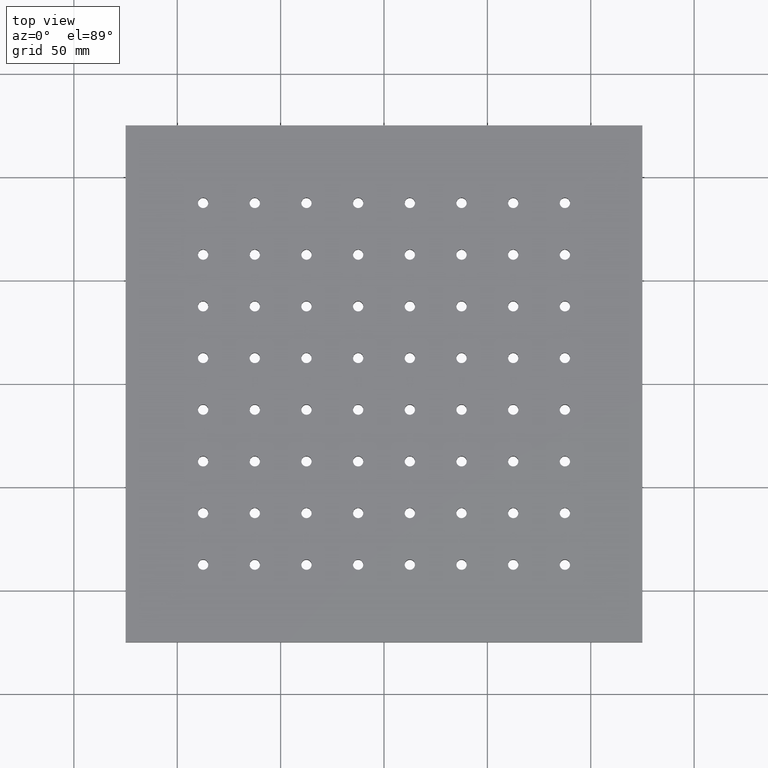
[diagram: clean part render]
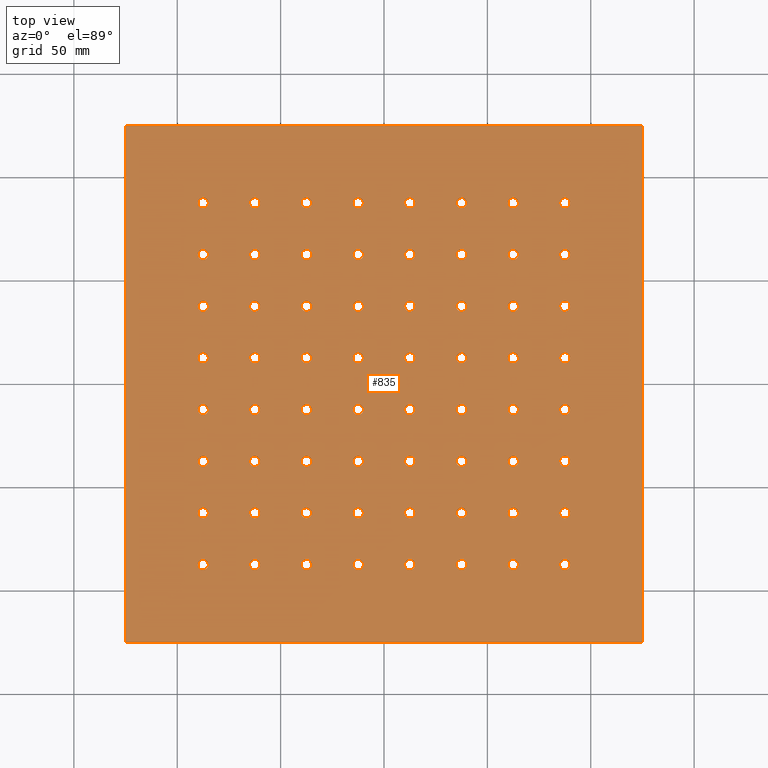
[diagram: same view with one face highlighted and labeled with its STEP entity id]
A machine part, top view. The second image highlights one B-rep face of the part: STEP entity #835.
In plain terms, the highlighted planar face has unit normal (-0, 0, 1).
Its self-contained STEP definition (entity closure, byte-faithful):
#4 = VERTEX_POINT ( 'NONE', #2514 ) ;
#8 = AXIS2_PLACEMENT_3D ( 'NONE', #2650, #1892, #4216 ) ;
#10 = DIRECTION ( 'NONE',  ( 1.000000000000000000, 0.0000000000000000000, 0.0000000000000000000 ) ) ;
#11 = EDGE_CURVE ( 'NONE', #540, #3953, #3766, .T. ) ;
#17 = EDGE_LOOP ( 'NONE', ( #2658, #1482 ) ) ;
#21 = CARTESIAN_POINT ( 'NONE',  ( 85.00000000000000000, 12.50000000000003200, 13.00000000000000000 ) ) ;
#23 = ORIENTED_EDGE ( 'NONE', *, *, #4334, .F. ) ;
#29 = EDGE_CURVE ( 'NONE', #716, #2146, #614, .T. ) ;
#37 = AXIS2_PLACEMENT_3D ( 'NONE', #1946, #4056, #4075 ) ;
#43 = DIRECTION ( 'NONE',  ( -0.0000000000000000000, -0.0000000000000000000, 1.000000000000000000 ) ) ;
#51 = CIRCLE ( 'NONE', #3316, 2.500000000000002200 ) ;
#59 = DIRECTION ( 'NONE',  ( 1.000000000000000000, 0.0000000000000000000, 0.0000000000000000000 ) ) ;
#60 = CARTESIAN_POINT ( 'NONE',  ( -65.00000000000000000, 62.50000000000005700, 13.00000000000000000 ) ) ;
#63 = CARTESIAN_POINT ( 'NONE',  ( 37.50000000000000700, 37.50000000000002800, 13.00000000000000000 ) ) ;
#64 = EDGE_CURVE ( 'NONE', #3394, #2453, #492, .T. ) ;
#66 = VERTEX_POINT ( 'NONE', #1832 ) ;
#67 = ORIENTED_EDGE ( 'NONE', *, *, #1514, .F. ) ;
#72 = EDGE_CURVE ( 'NONE', #3061, #2895, #4430, .T. ) ;
#90 = DIRECTION ( 'NONE',  ( 1.000000000000000000, 0.0000000000000000000, 0.0000000000000000000 ) ) ;
#96 = CARTESIAN_POINT ( 'NONE',  ( 15.00000000000000000, 87.50000000000005700, 13.00000000000000000 ) ) ;
#105 = VERTEX_POINT ( 'NONE', #2931 ) ;
#108 = ORIENTED_EDGE ( 'NONE', *, *, #4731, .F. ) ;
#112 = CARTESIAN_POINT ( 'NONE',  ( -9.999999999999994700, 87.50000000000005700, 13.00000000000000000 ) ) ;
#113 = FACE_BOUND ( 'NONE', #1684, .T. ) ;
#114 = ORIENTED_EDGE ( 'NONE', *, *, #1284, .F. ) ;
#115 = VERTEX_POINT ( 'NONE', #4513 ) ;
#123 = VERTEX_POINT ( 'NONE', #2760 ) ;
#135 = VERTEX_POINT ( 'NONE', #4319 ) ;
#136 = DIRECTION ( 'NONE',  ( 1.000000000000000000, 0.0000000000000000000, 0.0000000000000000000 ) ) ;
#139 = AXIS2_PLACEMENT_3D ( 'NONE', #990, #3647, #1375 ) ;
#141 = VECTOR ( 'NONE', #2264, 1000.000000000000000 ) ;
#146 = CIRCLE ( 'NONE', #139, 2.500000000000002200 ) ;
#147 = CARTESIAN_POINT ( 'NONE',  ( -12.49999999999999100, -37.49999999999997900, 13.00000000000000000 ) ) ;
#150 = CARTESIAN_POINT ( 'NONE',  ( -87.50000000000001400, -87.49999999999998600, 13.00000000000000000 ) ) ;
#162 = AXIS2_PLACEMENT_3D ( 'NONE', #506, #3169, #893 ) ;
#165 = CIRCLE ( 'NONE', #2555, 2.500000000000002200 ) ;
#173 = AXIS2_PLACEMENT_3D ( 'NONE', #2684, #418, #3077 ) ;
#177 = VERTEX_POINT ( 'NONE', #259 ) ;
#182 = EDGE_CURVE ( 'NONE', #3438, #1040, #4196, .T. ) ;
#183 = CARTESIAN_POINT ( 'NONE',  ( -34.99999999999999300, 12.50000000000003200, 13.00000000000000000 ) ) ;
#190 = EDGE_LOOP ( 'NONE', ( #2412, #2874 ) ) ;
#193 = DIRECTION ( 'NONE',  ( 1.000000000000000000, 0.0000000000000000000, 0.0000000000000000000 ) ) ;
#195 = DIRECTION ( 'NONE',  ( 1.000000000000000000, 0.0000000000000000000, 0.0000000000000000000 ) ) ;
#198 = EDGE_LOOP ( 'NONE', ( #3798, #2381 ) ) ;
#199 = AXIS2_PLACEMENT_3D ( 'NONE', #655, #3306, #1036 ) ;
#200 = CARTESIAN_POINT ( 'NONE',  ( 37.50000000000000700, 62.50000000000005700, 13.00000000000000000 ) ) ;
#210 = CIRCLE ( 'NONE', #3908, 2.500000000000002200 ) ;
#213 = VERTEX_POINT ( 'NONE', #1988 ) ;
#216 = ORIENTED_EDGE ( 'NONE', *, *, #2020, .F. ) ;
#219 = CARTESIAN_POINT ( 'NONE',  ( -87.50000000000001400, -37.49999999999997900, 13.00000000000000000 ) ) ;
#223 = CARTESIAN_POINT ( 'NONE',  ( 35.00000000000000000, -12.49999999999997000, 13.00000000000000000 ) ) ;
#229 = FACE_BOUND ( 'NONE', #265, .T. ) ;
#230 = DIRECTION ( 'NONE',  ( -0.0000000000000000000, -0.0000000000000000000, 1.000000000000000000 ) ) ;
#238 = CARTESIAN_POINT ( 'NONE',  ( -40.00000000000000000, 12.50000000000003200, 13.00000000000000000 ) ) ;
#241 = CARTESIAN_POINT ( 'NONE',  ( -85.00000000000000000, -37.49999999999997900, 13.00000000000000000 ) ) ;
#248 = EDGE_LOOP ( 'NONE', ( #67, #3046 ) ) ;
#250 = CARTESIAN_POINT ( 'NONE',  ( -37.50000000000000000, -37.49999999999997900, 13.00000000000000000 ) ) ;
#257 = EDGE_CURVE ( 'NONE', #2226, #4191, #4832, .T. ) ;
#259 = CARTESIAN_POINT ( 'NONE',  ( -90.00000000000001400, -62.49999999999997900, 13.00000000000000000 ) ) ;
#264 = AXIS2_PLACEMENT_3D ( 'NONE', #4564, #4793, #1409 ) ;
#265 = EDGE_LOOP ( 'NONE', ( #3381, #1600 ) ) ;
#268 = EDGE_CURVE ( 'NONE', #598, #4876, #3944, .T. ) ;
#269 = CIRCLE ( 'NONE', #3882, 2.500000000000002200 ) ;
#281 = DIRECTION ( 'NONE',  ( -0.0000000000000000000, -0.0000000000000000000, 1.000000000000000000 ) ) ;
#290 = VERTEX_POINT ( 'NONE', #2171 ) ;
#291 = FACE_BOUND ( 'NONE', #1521, .T. ) ;
#293 = ORIENTED_EDGE ( 'NONE', *, *, #1104, .F. ) ;
#294 = CARTESIAN_POINT ( 'NONE',  ( -62.50000000000000000, 37.50000000000002800, 13.00000000000000000 ) ) ;
#298 = CARTESIAN_POINT ( 'NONE',  ( -9.999999999999987600, 37.50000000000002800, 13.00000000000000000 ) ) ;
#305 = DIRECTION ( 'NONE',  ( -0.0000000000000000000, -0.0000000000000000000, 1.000000000000000000 ) ) ;
#319 = CARTESIAN_POINT ( 'NONE',  ( 40.00000000000000700, -12.49999999999997000, 13.00000000000000000 ) ) ;
#320 = CARTESIAN_POINT ( 'NONE',  ( 37.50000000000000700, -12.49999999999997000, 13.00000000000000000 ) ) ;
#323 = CARTESIAN_POINT ( 'NONE',  ( 37.49999999999999300, -87.49999999999998600, 13.00000000000000000 ) ) ;
#324 = EDGE_LOOP ( 'NONE', ( #326, #914 ) ) ;
#325 = ORIENTED_EDGE ( 'NONE', *, *, #822, .F. ) ;
#326 = ORIENTED_EDGE ( 'NONE', *, *, #3635, .F. ) ;
#328 = EDGE_LOOP ( 'NONE', ( #3156, #3100 ) ) ;
#334 = AXIS2_PLACEMENT_3D ( 'NONE', #3715, #1443, #4108 ) ;
#342 = CIRCLE ( 'NONE', #3396, 2.500000000000002200 ) ;
#349 = VERTEX_POINT ( 'NONE', #3629 ) ;
#356 = CARTESIAN_POINT ( 'NONE',  ( 15.00000000000001400, -37.49999999999997900, 13.00000000000000000 ) ) ;
#360 = FACE_BOUND ( 'NONE', #17, .T. ) ;
#362 = EDGE_LOOP ( 'NONE', ( #2447, #4144 ) ) ;
#367 = EDGE_CURVE ( 'NONE', #1217, #2261, #437, .T. ) ;
#369 = VERTEX_POINT ( 'NONE', #223 ) ;
#372 = CARTESIAN_POINT ( 'NONE',  ( -12.49999999999999600, 87.50000000000005700, 13.00000000000000000 ) ) ;
#383 = DIRECTION ( 'NONE',  ( 1.000000000000000000, 0.0000000000000000000, 0.0000000000000000000 ) ) ;
#391 = VERTEX_POINT ( 'NONE', #4261 ) ;
#394 = AXIS2_PLACEMENT_3D ( 'NONE', #2955, #2666, #3036 ) ;
#396 = DIRECTION ( 'NONE',  ( -0.0000000000000000000, -0.0000000000000000000, 1.000000000000000000 ) ) ;
#398 = DIRECTION ( 'NONE',  ( -0.0000000000000000000, -0.0000000000000000000, 1.000000000000000000 ) ) ;
#405 = CIRCLE ( 'NONE', #439, 2.500000000000002200 ) ;
#414 = FACE_BOUND ( 'NONE', #190, .T. ) ;
#418 = DIRECTION ( 'NONE',  ( -0.0000000000000000000, -0.0000000000000000000, 1.000000000000000000 ) ) ;
#420 = VERTEX_POINT ( 'NONE', #3887 ) ;
#421 = EDGE_CURVE ( 'NONE', #745, #4937, #2992, .T. ) ;
#423 = AXIS2_PLACEMENT_3D ( 'NONE', #1782, #1774, #1760 ) ;
#427 = DIRECTION ( 'NONE',  ( -0.0000000000000000000, -0.0000000000000000000, 1.000000000000000000 ) ) ;
#433 = EDGE_CURVE ( 'NONE', #1721, #4243, #608, .T. ) ;
#435 = DIRECTION ( 'NONE',  ( 1.000000000000000000, 0.0000000000000000000, 0.0000000000000000000 ) ) ;
#436 = VERTEX_POINT ( 'NONE', #3690 ) ;
#437 = CIRCLE ( 'NONE', #4023, 2.500000000000002200 ) ;
#439 = AXIS2_PLACEMENT_3D ( 'NONE', #3436, #1168, #3820 ) ;
#442 = EDGE_LOOP ( 'NONE', ( #4927, #1129 ) ) ;
#443 = CARTESIAN_POINT ( 'NONE',  ( 90.00000000000001400, -62.49999999999997900, 13.00000000000000000 ) ) ;
#445 = CARTESIAN_POINT ( 'NONE',  ( -60.00000000000000000, 62.50000000000005700, 13.00000000000000000 ) ) ;
#446 = DIRECTION ( 'NONE',  ( 1.000000000000000000, 0.0000000000000000000, 0.0000000000000000000 ) ) ;
#447 = EDGE_CURVE ( 'NONE', #3622, #4481, #2405, .T. ) ;
#450 = CIRCLE ( 'NONE', #4240, 2.500000000000002200 ) ;
#453 = EDGE_CURVE ( 'NONE', #4510, #391, #1384, .T. ) ;
#469 = VERTEX_POINT ( 'NONE', #1544 ) ;
#470 = DIRECTION ( 'NONE',  ( -0.0000000000000000000, -0.0000000000000000000, 1.000000000000000000 ) ) ;
#471 = FACE_BOUND ( 'NONE', #2046, .T. ) ;
#472 = EDGE_LOOP ( 'NONE', ( #1090, #2846 ) ) ;
#477 = CARTESIAN_POINT ( 'NONE',  ( -62.50000000000000000, -87.49999999999998600, 13.00000000000000000 ) ) ;
#479 = CARTESIAN_POINT ( 'NONE',  ( -40.00000000000000700, -87.49999999999998600, 13.00000000000000000 ) ) ;
#484 = EDGE_LOOP ( 'NONE', ( #557, #549 ) ) ;
#490 = DIRECTION ( 'NONE',  ( -0.0000000000000000000, -0.0000000000000000000, 1.000000000000000000 ) ) ;
#492 = CIRCLE ( 'NONE', #2833, 2.500000000000002200 ) ;
#498 = ORIENTED_EDGE ( 'NONE', *, *, #4190, .F. ) ;
#501 = VERTEX_POINT ( 'NONE', #4931 ) ;
#502 = ORIENTED_EDGE ( 'NONE', *, *, #4129, .F. ) ;
#506 = CARTESIAN_POINT ( 'NONE',  ( 37.50000000000000700, -62.49999999999997900, 13.00000000000000000 ) ) ;
#508 = EDGE_CURVE ( 'NONE', #123, #2437, #3167, .T. ) ;
#510 = AXIS2_PLACEMENT_3D ( 'NONE', #3495, #3460, #3407 ) ;
#514 = CARTESIAN_POINT ( 'NONE',  ( 37.49999999999999300, 87.50000000000005700, 13.00000000000000000 ) ) ;
#515 = AXIS2_PLACEMENT_3D ( 'NONE', #3426, #3331, #928 ) ;
#517 = CARTESIAN_POINT ( 'NONE',  ( 90.00000000000001400, 87.50000000000005700, 13.00000000000000000 ) ) ;
#525 = FACE_BOUND ( 'NONE', #1986, .T. ) ;
#526 = EDGE_LOOP ( 'NONE', ( #3172, #2287 ) ) ;
#528 = CARTESIAN_POINT ( 'NONE',  ( 12.50000000000001100, 62.50000000000005700, 13.00000000000000000 ) ) ;
#533 = DIRECTION ( 'NONE',  ( 1.000000000000000000, 0.0000000000000000000, 0.0000000000000000000 ) ) ;
#534 = EDGE_LOOP ( 'NONE', ( #2225, #4499 ) ) ;
#535 = DIRECTION ( 'NONE',  ( -0.0000000000000000000, -0.0000000000000000000, 1.000000000000000000 ) ) ;
#536 = VERTEX_POINT ( 'NONE', #1061 ) ;
#537 = DIRECTION ( 'NONE',  ( 1.000000000000000000, 0.0000000000000000000, 0.0000000000000000000 ) ) ;
#540 = VERTEX_POINT ( 'NONE', #4627 ) ;
#543 = EDGE_CURVE ( 'NONE', #2751, #4051, #2908, .T. ) ;
#549 = ORIENTED_EDGE ( 'NONE', *, *, #580, .F. ) ;
#556 = ORIENTED_EDGE ( 'NONE', *, *, #3614, .F. ) ;
#557 = ORIENTED_EDGE ( 'NONE', *, *, #64, .F. ) ;
#560 = AXIS2_PLACEMENT_3D ( 'NONE', #4078, #4816, #4871 ) ;
#561 = CARTESIAN_POINT ( 'NONE',  ( -90.00000000000001400, 62.50000000000005700, 13.00000000000000000 ) ) ;
#564 = CIRCLE ( 'NONE', #2444, 2.500000000000002200 ) ;
#569 = EDGE_CURVE ( 'NONE', #2261, #1217, #1783, .T. ) ;
#574 = AXIS2_PLACEMENT_3D ( 'NONE', #294, #1006, #852 ) ;
#577 = LINE ( 'NONE', #2747, #4531 ) ;
#579 = AXIS2_PLACEMENT_3D ( 'NONE', #2202, #4863, #2585 ) ;
#580 = EDGE_CURVE ( 'NONE', #2453, #3394, #1904, .T. ) ;
#584 = EDGE_CURVE ( 'NONE', #66, #1800, #4936, .T. ) ;
#587 = FACE_BOUND ( 'NONE', #362, .T. ) ;
#591 = CARTESIAN_POINT ( 'NONE',  ( 12.49999999999999600, -87.49999999999998600, 13.00000000000000000 ) ) ;
#593 = DIRECTION ( 'NONE',  ( 1.000000000000000000, 0.0000000000000000000, 0.0000000000000000000 ) ) ;
#598 = VERTEX_POINT ( 'NONE', #298 ) ;
#600 = CARTESIAN_POINT ( 'NONE',  ( 39.99999999999999300, 87.50000000000005700, 13.00000000000000000 ) ) ;
#603 = DIRECTION ( 'NONE',  ( 1.000000000000000000, 0.0000000000000000000, 0.0000000000000000000 ) ) ;
#604 = DIRECTION ( 'NONE',  ( 1.000000000000000000, 0.0000000000000000000, 0.0000000000000000000 ) ) ;
#608 = CIRCLE ( 'NONE', #1636, 2.500000000000002200 ) ;
#614 = CIRCLE ( 'NONE', #1064, 2.500000000000002200 ) ;
#621 = ORIENTED_EDGE ( 'NONE', *, *, #675, .F. ) ;
#626 = DIRECTION ( 'NONE',  ( -0.0000000000000000000, -0.0000000000000000000, 1.000000000000000000 ) ) ;
#630 = ORIENTED_EDGE ( 'NONE', *, *, #4759, .F. ) ;
#636 = DIRECTION ( 'NONE',  ( 1.000000000000000000, 0.0000000000000000000, 0.0000000000000000000 ) ) ;
#639 = CARTESIAN_POINT ( 'NONE',  ( 87.50000000000001400, -37.49999999999997900, 13.00000000000000000 ) ) ;
#642 = ORIENTED_EDGE ( 'NONE', *, *, #924, .F. ) ;
#647 = AXIS2_PLACEMENT_3D ( 'NONE', #3769, #398, #4091 ) ;
#650 = FACE_BOUND ( 'NONE', #4783, .T. ) ;
#655 = CARTESIAN_POINT ( 'NONE',  ( 12.50000000000001100, 12.50000000000003200, 13.00000000000000000 ) ) ;
#656 = DIRECTION ( 'NONE',  ( -0.0000000000000000000, -0.0000000000000000000, 1.000000000000000000 ) ) ;
#660 = DIRECTION ( 'NONE',  ( -0.0000000000000000000, -0.0000000000000000000, 1.000000000000000000 ) ) ;
#663 = CARTESIAN_POINT ( 'NONE',  ( -37.50000000000000000, -12.49999999999997000, 13.00000000000000000 ) ) ;
#667 = CARTESIAN_POINT ( 'NONE',  ( 37.50000000000000700, -12.49999999999997000, 13.00000000000000000 ) ) ;
#675 = EDGE_CURVE ( 'NONE', #3992, #4, #2669, .T. ) ;
#683 = VERTEX_POINT ( 'NONE', #1678 ) ;
#686 = AXIS2_PLACEMENT_3D ( 'NONE', #4705, #2426, #136 ) ;
#688 = ORIENTED_EDGE ( 'NONE', *, *, #4235, .F. ) ;
#694 = CARTESIAN_POINT ( 'NONE',  ( 10.00000000000000900, -62.49999999999997900, 13.00000000000000000 ) ) ;
#698 = CIRCLE ( 'NONE', #1485, 2.500000000000002200 ) ;
#705 = DIRECTION ( 'NONE',  ( 1.000000000000000000, 0.0000000000000000000, 0.0000000000000000000 ) ) ;
#710 = VERTEX_POINT ( 'NONE', #1366 ) ;
#716 = VERTEX_POINT ( 'NONE', #1361 ) ;
#717 = CARTESIAN_POINT ( 'NONE',  ( -34.99999999999999300, -12.49999999999997000, 13.00000000000000000 ) ) ;
#719 = AXIS2_PLACEMENT_3D ( 'NONE', #4535, #1772, #4053 ) ;
#720 = FACE_BOUND ( 'NONE', #3925, .T. ) ;
#722 = AXIS2_PLACEMENT_3D ( 'NONE', #985, #3257, #603 ) ;
#724 = CARTESIAN_POINT ( 'NONE',  ( -15.00000000000000000, 87.50000000000005700, 13.00000000000000000 ) ) ;
#726 = ORIENTED_EDGE ( 'NONE', *, *, #4317, .T. ) ;
#731 = ORIENTED_EDGE ( 'NONE', *, *, #367, .F. ) ;
#742 = CARTESIAN_POINT ( 'NONE',  ( 65.00000000000002800, -37.49999999999997900, 13.00000000000000000 ) ) ;
#744 = DIRECTION ( 'NONE',  ( -0.0000000000000000000, -0.0000000000000000000, 1.000000000000000000 ) ) ;
#745 = VERTEX_POINT ( 'NONE', #4394 ) ;
#747 = CARTESIAN_POINT ( 'NONE',  ( -85.00000000000000000, 62.50000000000005700, 13.00000000000000000 ) ) ;
#748 = EDGE_CURVE ( 'NONE', #4355, #1011, #3449, .T. ) ;
#754 = DIRECTION ( 'NONE',  ( 1.000000000000000000, 0.0000000000000000000, 0.0000000000000000000 ) ) ;
#756 = AXIS2_PLACEMENT_3D ( 'NONE', #764, #1252, #3524 ) ;
#757 = CIRCLE ( 'NONE', #579, 2.500000000000002200 ) ;
#761 = CIRCLE ( 'NONE', #3588, 2.500000000000002200 ) ;
#764 = CARTESIAN_POINT ( 'NONE',  ( -62.50000000000000000, -62.49999999999997900, 13.00000000000000000 ) ) ;
#770 = FACE_BOUND ( 'NONE', #3644, .T. ) ;
#772 = VERTEX_POINT ( 'NONE', #4174 ) ;
#782 = DIRECTION ( 'NONE',  ( -0.0000000000000000000, -0.0000000000000000000, 1.000000000000000000 ) ) ;
#783 = CARTESIAN_POINT ( 'NONE',  ( -62.50000000000000000, -37.49999999999997900, 13.00000000000000000 ) ) ;
#790 = CARTESIAN_POINT ( 'NONE',  ( 15.00000000000001400, 62.50000000000005700, 13.00000000000000000 ) ) ;
#795 = AXIS2_PLACEMENT_3D ( 'NONE', #1507, #4175, #1881 ) ;
#796 = ORIENTED_EDGE ( 'NONE', *, *, #3037, .F. ) ;
#803 = VERTEX_POINT ( 'NONE', #3894 ) ;
#813 = EDGE_CURVE ( 'NONE', #501, #2815, #2731, .T. ) ;
#814 = AXIS2_PLACEMENT_3D ( 'NONE', #4132, #4150, #4183 ) ;
#819 = CARTESIAN_POINT ( 'NONE',  ( -62.50000000000000000, 12.50000000000003200, 13.00000000000000000 ) ) ;
#822 = EDGE_CURVE ( 'NONE', #1040, #3438, #1851, .T. ) ;
#830 = CIRCLE ( 'NONE', #3898, 2.500000000000002200 ) ;
#831 = DIRECTION ( 'NONE',  ( 1.000000000000000000, 0.0000000000000000000, 0.0000000000000000000 ) ) ;
#833 = DIRECTION ( 'NONE',  ( -0.0000000000000000000, -0.0000000000000000000, 1.000000000000000000 ) ) ;
#835 = ADVANCED_FACE ( 'NONE', ( #720, #838, #3750, #4653, #3620, #2615, #1611, #587, #4536, #3510, #2493, #1495, #471, #4405, #3387, #2387, #1362, #360, #4290, #3258, #2260, #1255, #229, #4176, #3147, #2127, #1136, #113, #4042, #3030, #2017, #1003, #4932, #3923, #2901, #1899, #886, #4806, #3797, #2782, #1777, #770, #4698, #3673, #2662, #1656, #650, #4589, #3560, #2549, #1545, #525, #4469, #3445, #2435, #1423, #414, #4335, #3326, #2320, #1308, #291, #4228, #3199, #2191 ), #3725, .T. ) ;
#838 = FACE_BOUND ( 'NONE', #472, .T. ) ;
#848 = CARTESIAN_POINT ( 'NONE',  ( 60.00000000000001400, 87.50000000000005700, 13.00000000000000000 ) ) ;
#850 = EDGE_CURVE ( 'NONE', #3630, #213, #165, .T. ) ;
#852 = DIRECTION ( 'NONE',  ( 1.000000000000000000, 0.0000000000000000000, 0.0000000000000000000 ) ) ;
#862 = EDGE_CURVE ( 'NONE', #1105, #1912, #2064, .T. ) ;
#864 = CIRCLE ( 'NONE', #2360, 2.500000000000002200 ) ;
#865 = CIRCLE ( 'NONE', #199, 2.500000000000002200 ) ;
#870 = CIRCLE ( 'NONE', #1169, 2.500000000000002200 ) ;
#885 = DIRECTION ( 'NONE',  ( -0.0000000000000000000, -0.0000000000000000000, 1.000000000000000000 ) ) ;
#886 = FACE_BOUND ( 'NONE', #4880, .T. ) ;
#893 = DIRECTION ( 'NONE',  ( 1.000000000000000000, 0.0000000000000000000, 0.0000000000000000000 ) ) ;
#899 = AXIS2_PLACEMENT_3D ( 'NONE', #3008, #2609, #3073 ) ;
#900 = DIRECTION ( 'NONE',  ( 1.000000000000000000, 0.0000000000000000000, 0.0000000000000000000 ) ) ;
#905 = DIRECTION ( 'NONE',  ( 1.000000000000000000, 0.0000000000000000000, 0.0000000000000000000 ) ) ;
#906 = EDGE_CURVE ( 'NONE', #772, #3173, #51, .T. ) ;
#914 = ORIENTED_EDGE ( 'NONE', *, *, #1617, .F. ) ;
#918 = ORIENTED_EDGE ( 'NONE', *, *, #3110, .F. ) ;
#919 = CIRCLE ( 'NONE', #1737, 2.500000000000002200 ) ;
#920 = EDGE_LOOP ( 'NONE', ( #4015, #1935 ) ) ;
#921 = DIRECTION ( 'NONE',  ( -0.0000000000000000000, -0.0000000000000000000, 1.000000000000000000 ) ) ;
#924 = EDGE_CURVE ( 'NONE', #1148, #2754, #1846, .T. ) ;
#928 = DIRECTION ( 'NONE',  ( 1.000000000000000000, 0.0000000000000000000, 0.0000000000000000000 ) ) ;
#932 = EDGE_CURVE ( 'NONE', #135, #105, #1960, .T. ) ;
#934 = CARTESIAN_POINT ( 'NONE',  ( 62.50000000000002800, 37.50000000000002800, 13.00000000000000000 ) ) ;
#943 = VERTEX_POINT ( 'NONE', #2120 ) ;
#951 = DIRECTION ( 'NONE',  ( 1.000000000000000000, 0.0000000000000000000, 0.0000000000000000000 ) ) ;
#953 = EDGE_CURVE ( 'NONE', #4311, #2014, #2839, .T. ) ;
#955 = EDGE_LOOP ( 'NONE', ( #630, #2644 ) ) ;
#957 = VERTEX_POINT ( 'NONE', #2266 ) ;
#962 = AXIS2_PLACEMENT_3D ( 'NONE', #4772, #2872, #2108 ) ;
#972 = DIRECTION ( 'NONE',  ( 1.000000000000000000, 0.0000000000000000000, 0.0000000000000000000 ) ) ;
#976 = EDGE_LOOP ( 'NONE', ( #2695, #1686 ) ) ;
#978 = EDGE_LOOP ( 'NONE', ( #3247, #3557 ) ) ;
#979 = ORIENTED_EDGE ( 'NONE', *, *, #3663, .F. ) ;
#981 = CIRCLE ( 'NONE', #2603, 2.500000000000002200 ) ;
#985 = CARTESIAN_POINT ( 'NONE',  ( 37.50000000000000700, -37.49999999999997900, 13.00000000000000000 ) ) ;
#989 = AXIS2_PLACEMENT_3D ( 'NONE', #219, #2501, #4775 ) ;
#990 = CARTESIAN_POINT ( 'NONE',  ( -62.50000000000000000, -37.49999999999997900, 13.00000000000000000 ) ) ;
#1001 = ORIENTED_EDGE ( 'NONE', *, *, #1542, .F. ) ;
#1002 = CARTESIAN_POINT ( 'NONE',  ( -14.99999999999999300, -62.49999999999997900, 13.00000000000000000 ) ) ;
#1003 = FACE_BOUND ( 'NONE', #3223, .T. ) ;
#1004 = AXIS2_PLACEMENT_3D ( 'NONE', #2717, #833, #4468 ) ;
#1006 = DIRECTION ( 'NONE',  ( -0.0000000000000000000, -0.0000000000000000000, 1.000000000000000000 ) ) ;
#1011 = VERTEX_POINT ( 'NONE', #1753 ) ;
#1012 = DIRECTION ( 'NONE',  ( -0.0000000000000000000, -0.0000000000000000000, 1.000000000000000000 ) ) ;
#1018 = CARTESIAN_POINT ( 'NONE',  ( 60.00000000000002800, 12.50000000000003200, 13.00000000000000000 ) ) ;
#1020 = DIRECTION ( 'NONE',  ( 1.000000000000000000, 0.0000000000000000000, 0.0000000000000000000 ) ) ;
#1026 = CARTESIAN_POINT ( 'NONE',  ( -34.99999999999999300, 62.50000000000005700, 13.00000000000000000 ) ) ;
#1028 = AXIS2_PLACEMENT_3D ( 'NONE', #3600, #3586, #3568 ) ;
#1036 = DIRECTION ( 'NONE',  ( 1.000000000000000000, 0.0000000000000000000, 0.0000000000000000000 ) ) ;
#1038 = CARTESIAN_POINT ( 'NONE',  ( -14.99999999999999300, 62.50000000000005700, 13.00000000000000000 ) ) ;
#1040 = VERTEX_POINT ( 'NONE', #1094 ) ;
#1044 = DIRECTION ( 'NONE',  ( 1.000000000000000000, 0.0000000000000000000, 0.0000000000000000000 ) ) ;
#1046 = AXIS2_PLACEMENT_3D ( 'NONE', #372, #3029, #754 ) ;
#1048 = DIRECTION ( 'NONE',  ( 1.000000000000000000, 0.0000000000000000000, 0.0000000000000000000 ) ) ;
#1053 = CIRCLE ( 'NONE', #4728, 2.500000000000002200 ) ;
#1061 = CARTESIAN_POINT ( 'NONE',  ( -90.00000000000001400, 37.50000000000002800, 13.00000000000000000 ) ) ;
#1064 = AXIS2_PLACEMENT_3D ( 'NONE', #3272, #2984, #3523 ) ;
#1065 = ORIENTED_EDGE ( 'NONE', *, *, #2809, .F. ) ;
#1067 = ORIENTED_EDGE ( 'NONE', *, *, #2999, .F. ) ;
#1069 = EDGE_LOOP ( 'NONE', ( #1067, #3671 ) ) ;
#1070 = DIRECTION ( 'NONE',  ( -0.0000000000000000000, -0.0000000000000000000, 1.000000000000000000 ) ) ;
#1073 = CARTESIAN_POINT ( 'NONE',  ( -85.00000000000000000, 37.50000000000002800, 13.00000000000000000 ) ) ;
#1082 = AXIS2_PLACEMENT_3D ( 'NONE', #2494, #3304, #3377 ) ;
#1086 = ORIENTED_EDGE ( 'NONE', *, *, #1454, .T. ) ;
#1090 = ORIENTED_EDGE ( 'NONE', *, *, #2021, .F. ) ;
#1092 = VERTEX_POINT ( 'NONE', #790 ) ;
#1094 = CARTESIAN_POINT ( 'NONE',  ( 65.00000000000002800, 12.50000000000003200, 13.00000000000000000 ) ) ;
#1095 = CARTESIAN_POINT ( 'NONE',  ( -37.50000000000000700, -87.49999999999998600, 13.00000000000000000 ) ) ;
#1104 = EDGE_CURVE ( 'NONE', #4937, #745, #2254, .T. ) ;
#1105 = VERTEX_POINT ( 'NONE', #561 ) ;
#1107 = EDGE_CURVE ( 'NONE', #2009, #177, #3143, .T. ) ;
#1108 = ORIENTED_EDGE ( 'NONE', *, *, #3185, .F. ) ;
#1113 = ORIENTED_EDGE ( 'NONE', *, *, #4064, .F. ) ;
#1117 = DIRECTION ( 'NONE',  ( -0.0000000000000000000, -0.0000000000000000000, 1.000000000000000000 ) ) ;
#1125 = CARTESIAN_POINT ( 'NONE',  ( -9.999999999999987600, 12.50000000000003200, 13.00000000000000000 ) ) ;
#1129 = ORIENTED_EDGE ( 'NONE', *, *, #2741, .F. ) ;
#1134 = EDGE_CURVE ( 'NONE', #3059, #1092, #3026, .T. ) ;
#1136 = FACE_BOUND ( 'NONE', #1690, .T. ) ;
#1137 = EDGE_LOOP ( 'NONE', ( #1985, #3530 ) ) ;
#1143 = VERTEX_POINT ( 'NONE', #4636 ) ;
#1148 = VERTEX_POINT ( 'NONE', #4062 ) ;
#1160 = ORIENTED_EDGE ( 'NONE', *, *, #2561, .F. ) ;
#1167 = LINE ( 'NONE', #2248, #141 ) ;
#1168 = DIRECTION ( 'NONE',  ( -0.0000000000000000000, -0.0000000000000000000, 1.000000000000000000 ) ) ;
#1169 = AXIS2_PLACEMENT_3D ( 'NONE', #1850, #4515, #2223 ) ;
#1179 = CARTESIAN_POINT ( 'NONE',  ( 62.50000000000001400, -87.49999999999998600, 13.00000000000000000 ) ) ;
#1180 = CIRCLE ( 'NONE', #3574, 2.500000000000002200 ) ;
#1184 = CARTESIAN_POINT ( 'NONE',  ( -85.00000000000000000, -87.49999999999998600, 13.00000000000000000 ) ) ;
#1187 = CARTESIAN_POINT ( 'NONE',  ( 37.49999999999999300, -87.49999999999998600, 13.00000000000000000 ) ) ;
#1199 = AXIS2_PLACEMENT_3D ( 'NONE', #591, #3237, #972 ) ;
#1208 = CARTESIAN_POINT ( 'NONE',  ( 62.50000000000002800, -37.49999999999997900, 13.00000000000000000 ) ) ;
#1212 = DIRECTION ( 'NONE',  ( -0.0000000000000000000, -0.0000000000000000000, 1.000000000000000000 ) ) ;
#1217 = VERTEX_POINT ( 'NONE', #4764 ) ;
#1225 = EDGE_CURVE ( 'NONE', #1557, #2213, #4585, .T. ) ;
#1229 = ORIENTED_EDGE ( 'NONE', *, *, #1866, .F. ) ;
#1230 = AXIS2_PLACEMENT_3D ( 'NONE', #200, #2484, #4763 ) ;
#1252 = DIRECTION ( 'NONE',  ( -0.0000000000000000000, -0.0000000000000000000, 1.000000000000000000 ) ) ;
#1255 = FACE_BOUND ( 'NONE', #4310, .T. ) ;
#1257 = VERTEX_POINT ( 'NONE', #4615 ) ;
#1262 = DIRECTION ( 'NONE',  ( -0.0000000000000000000, -0.0000000000000000000, 1.000000000000000000 ) ) ;
#1268 = CARTESIAN_POINT ( 'NONE',  ( 12.49999999999999600, 87.50000000000005700, 13.00000000000000000 ) ) ;
#1272 = VERTEX_POINT ( 'NONE', #4388 ) ;
#1274 = VERTEX_POINT ( 'NONE', #4306 ) ;
#1275 = DIRECTION ( 'NONE',  ( -0.0000000000000000000, -0.0000000000000000000, 1.000000000000000000 ) ) ;
#1279 = ORIENTED_EDGE ( 'NONE', *, *, #2281, .F. ) ;
#1281 = VERTEX_POINT ( 'NONE', #2093 ) ;
#1282 = DIRECTION ( 'NONE',  ( -0.0000000000000000000, -0.0000000000000000000, 1.000000000000000000 ) ) ;
#1284 = EDGE_CURVE ( 'NONE', #710, #4406, #2316, .T. ) ;
#1290 = CIRCLE ( 'NONE', #3808, 2.500000000000002200 ) ;
#1291 = EDGE_CURVE ( 'NONE', #4191, #2226, #3319, .T. ) ;
#1296 = CIRCLE ( 'NONE', #173, 2.500000000000002200 ) ;
#1301 = VERTEX_POINT ( 'NONE', #2167 ) ;
#1302 = CIRCLE ( 'NONE', #2373, 2.500000000000002200 ) ;
#1303 = AXIS2_PLACEMENT_3D ( 'NONE', #3791, #1519, #4188 ) ;
#1305 = CARTESIAN_POINT ( 'NONE',  ( 60.00000000000001400, -87.49999999999998600, 13.00000000000000000 ) ) ;
#1308 = FACE_BOUND ( 'NONE', #955, .T. ) ;
#1318 = AXIS2_PLACEMENT_3D ( 'NONE', #3256, #660, #1975 ) ;
#1319 = VERTEX_POINT ( 'NONE', #1816 ) ;
#1320 = AXIS2_PLACEMENT_3D ( 'NONE', #3873, #3890, #1787 ) ;
#1321 = DIRECTION ( 'NONE',  ( 1.000000000000000000, 0.0000000000000000000, 0.0000000000000000000 ) ) ;
#1326 = AXIS2_PLACEMENT_3D ( 'NONE', #514, #3176, #900 ) ;
#1327 = EDGE_CURVE ( 'NONE', #105, #135, #1302, .T. ) ;
#1329 = CARTESIAN_POINT ( 'NONE',  ( -12.49999999999999600, 87.50000000000005700, 13.00000000000000000 ) ) ;
#1330 = CARTESIAN_POINT ( 'NONE',  ( 87.50000000000001400, 37.50000000000002800, 13.00000000000000000 ) ) ;
#1333 = AXIS2_PLACEMENT_3D ( 'NONE', #4835, #3266, #4359 ) ;
#1335 = CARTESIAN_POINT ( 'NONE',  ( 35.00000000000000000, 62.50000000000005700, 13.00000000000000000 ) ) ;
#1339 = CARTESIAN_POINT ( 'NONE',  ( -90.00000000000001400, 12.50000000000003200, 13.00000000000000000 ) ) ;
#1342 = CIRCLE ( 'NONE', #560, 2.500000000000002200 ) ;
#1344 = CIRCLE ( 'NONE', #2598, 2.500000000000002200 ) ;
#1346 = AXIS2_PLACEMENT_3D ( 'NONE', #4089, #2575, #4848 ) ;
#1351 = CIRCLE ( 'NONE', #3870, 2.500000000000002200 ) ;
#1361 = CARTESIAN_POINT ( 'NONE',  ( -9.999999999999987600, -62.49999999999997900, 13.00000000000000000 ) ) ;
#1362 = FACE_BOUND ( 'NONE', #1572, .T. ) ;
#1366 = CARTESIAN_POINT ( 'NONE',  ( -40.00000000000000000, -12.49999999999997000, 13.00000000000000000 ) ) ;
#1368 = VERTEX_POINT ( 'NONE', #3057 ) ;
#1373 = CARTESIAN_POINT ( 'NONE',  ( -87.50000000000001400, 12.50000000000003200, 13.00000000000000000 ) ) ;
#1375 = DIRECTION ( 'NONE',  ( 1.000000000000000000, 0.0000000000000000000, 0.0000000000000000000 ) ) ;
#1379 = EDGE_LOOP ( 'NONE', ( #1694, #1229 ) ) ;
#1381 = EDGE_CURVE ( 'NONE', #803, #1281, #4867, .T. ) ;
#1383 = CARTESIAN_POINT ( 'NONE',  ( 85.00000000000000000, -37.49999999999997900, 13.00000000000000000 ) ) ;
#1384 = CIRCLE ( 'NONE', #2900, 2.500000000000002200 ) ;
#1387 = VERTEX_POINT ( 'NONE', #2683 ) ;
#1390 = CARTESIAN_POINT ( 'NONE',  ( -90.00000000000001400, -87.49999999999998600, 13.00000000000000000 ) ) ;
#1398 = DIRECTION ( 'NONE',  ( -0.0000000000000000000, -0.0000000000000000000, 1.000000000000000000 ) ) ;
#1402 = CIRCLE ( 'NONE', #4323, 2.500000000000002200 ) ;
#1403 = DIRECTION ( 'NONE',  ( -0.0000000000000000000, -0.0000000000000000000, 1.000000000000000000 ) ) ;
#1409 = DIRECTION ( 'NONE',  ( 1.000000000000000000, 0.0000000000000000000, 0.0000000000000000000 ) ) ;
#1412 = CARTESIAN_POINT ( 'NONE',  ( -40.00000000000000700, 87.50000000000005700, 13.00000000000000000 ) ) ;
#1414 = CIRCLE ( 'NONE', #647, 2.500000000000002200 ) ;
#1415 = CARTESIAN_POINT ( 'NONE',  ( -37.50000000000000000, -37.49999999999997900, 13.00000000000000000 ) ) ;
#1422 = EDGE_CURVE ( 'NONE', #213, #3630, #830, .T. ) ;
#1423 = FACE_BOUND ( 'NONE', #4597, .T. ) ;
#1426 = VERTEX_POINT ( 'NONE', #445 ) ;
#1431 = VERTEX_POINT ( 'NONE', #4277 ) ;
#1433 = DIRECTION ( 'NONE',  ( -0.0000000000000000000, -0.0000000000000000000, 1.000000000000000000 ) ) ;
#1439 = EDGE_LOOP ( 'NONE', ( #4833, #3536 ) ) ;
#1442 = DIRECTION ( 'NONE',  ( 1.000000000000000000, 0.0000000000000000000, 0.0000000000000000000 ) ) ;
#1443 = DIRECTION ( 'NONE',  ( -0.0000000000000000000, -0.0000000000000000000, 1.000000000000000000 ) ) ;
#1447 = AXIS2_PLACEMENT_3D ( 'NONE', #4353, #2063, #4734 ) ;
#1453 = DIRECTION ( 'NONE',  ( 1.000000000000000000, 0.0000000000000000000, 0.0000000000000000000 ) ) ;
#1454 = EDGE_CURVE ( 'NONE', #1672, #123, #577, .T. ) ;
#1458 = EDGE_LOOP ( 'NONE', ( #1567, #4719 ) ) ;
#1465 = CARTESIAN_POINT ( 'NONE',  ( 87.50000000000001400, 12.50000000000003200, 13.00000000000000000 ) ) ;
#1467 = DIRECTION ( 'NONE',  ( -0.0000000000000000000, -0.0000000000000000000, 1.000000000000000000 ) ) ;
#1472 = DIRECTION ( 'NONE',  ( 1.000000000000000000, 0.0000000000000000000, 0.0000000000000000000 ) ) ;
#1473 = CIRCLE ( 'NONE', #1230, 2.500000000000002200 ) ;
#1479 = EDGE_CURVE ( 'NONE', #3813, #2506, #2376, .T. ) ;
#1482 = ORIENTED_EDGE ( 'NONE', *, *, #2627, .F. ) ;
#1485 = AXIS2_PLACEMENT_3D ( 'NONE', #3937, #2794, #3538 ) ;
#1489 = CARTESIAN_POINT ( 'NONE',  ( 35.00000000000000000, 12.50000000000003200, 13.00000000000000000 ) ) ;
#1495 = FACE_BOUND ( 'NONE', #4839, .T. ) ;
#1499 = CARTESIAN_POINT ( 'NONE',  ( 62.50000000000002800, -62.49999999999997900, 13.00000000000000000 ) ) ;
#1507 = CARTESIAN_POINT ( 'NONE',  ( 12.49999999999999600, 87.50000000000005700, 13.00000000000000000 ) ) ;
#1508 = VERTEX_POINT ( 'NONE', #2516 ) ;
#1514 = EDGE_CURVE ( 'NONE', #4243, #1721, #4398, .T. ) ;
#1519 = DIRECTION ( 'NONE',  ( -0.0000000000000000000, -0.0000000000000000000, 1.000000000000000000 ) ) ;
#1521 = EDGE_LOOP ( 'NONE', ( #979, #1691 ) ) ;
#1536 = DIRECTION ( 'NONE',  ( -0.0000000000000000000, -0.0000000000000000000, 1.000000000000000000 ) ) ;
#1539 = EDGE_LOOP ( 'NONE', ( #4730, #23 ) ) ;
#1542 = EDGE_CURVE ( 'NONE', #4302, #1143, #2252, .T. ) ;
#1544 = CARTESIAN_POINT ( 'NONE',  ( -35.00000000000000000, -87.49999999999998600, 13.00000000000000000 ) ) ;
#1545 = FACE_BOUND ( 'NONE', #324, .T. ) ;
#1557 = VERTEX_POINT ( 'NONE', #3733 ) ;
#1560 = DIRECTION ( 'NONE',  ( 1.000000000000000000, 0.0000000000000000000, 0.0000000000000000000 ) ) ;
#1565 = DIRECTION ( 'NONE',  ( 1.000000000000000000, 0.0000000000000000000, 0.0000000000000000000 ) ) ;
#1567 = ORIENTED_EDGE ( 'NONE', *, *, #3222, .F. ) ;
#1572 = EDGE_LOOP ( 'NONE', ( #642, #2776 ) ) ;
#1574 = VERTEX_POINT ( 'NONE', #3675 ) ;
#1576 = AXIS2_PLACEMENT_3D ( 'NONE', #4258, #2730, #831 ) ;
#1578 = VERTEX_POINT ( 'NONE', #1026 ) ;
#1582 = CIRCLE ( 'NONE', #4797, 2.500000000000002200 ) ;
#1584 = AXIS2_PLACEMENT_3D ( 'NONE', #3943, #1665, #4327 ) ;
#1586 = DIRECTION ( 'NONE',  ( 1.000000000000000000, 0.0000000000000000000, 0.0000000000000000000 ) ) ;
#1588 = AXIS2_PLACEMENT_3D ( 'NONE', #1739, #1756, #1713 ) ;
#1589 = CIRCLE ( 'NONE', #2075, 2.500000000000002200 ) ;
#1593 = DIRECTION ( 'NONE',  ( -1.110223024625156500E-016, 1.000000000000000000, -0.0000000000000000000 ) ) ;
#1596 = CARTESIAN_POINT ( 'NONE',  ( -87.50000000000001400, 37.50000000000002800, 13.00000000000000000 ) ) ;
#1600 = ORIENTED_EDGE ( 'NONE', *, *, #906, .F. ) ;
#1608 = AXIS2_PLACEMENT_3D ( 'NONE', #1688, #3968, #2552 ) ;
#1611 = FACE_BOUND ( 'NONE', #3648, .T. ) ;
#1615 = DIRECTION ( 'NONE',  ( 1.000000000000000000, 0.0000000000000000000, 0.0000000000000000000 ) ) ;
#1617 = EDGE_CURVE ( 'NONE', #3106, #4052, #4799, .T. ) ;
#1619 = DIRECTION ( 'NONE',  ( -0.0000000000000000000, -0.0000000000000000000, 1.000000000000000000 ) ) ;
#1636 = AXIS2_PLACEMENT_3D ( 'NONE', #3712, #782, #4478 ) ;
#1638 = EDGE_CURVE ( 'NONE', #1963, #4842, #1651, .T. ) ;
#1651 = CIRCLE ( 'NONE', #4813, 2.500000000000002200 ) ;
#1652 = CARTESIAN_POINT ( 'NONE',  ( -37.50000000000000000, 62.50000000000005700, 13.00000000000000000 ) ) ;
#1656 = FACE_BOUND ( 'NONE', #3475, .T. ) ;
#1665 = DIRECTION ( 'NONE',  ( -0.0000000000000000000, -0.0000000000000000000, 1.000000000000000000 ) ) ;
#1669 = AXIS2_PLACEMENT_3D ( 'NONE', #2237, #4899, #2619 ) ;
#1671 = EDGE_CURVE ( 'NONE', #469, #3838, #4580, .T. ) ;
#1672 = VERTEX_POINT ( 'NONE', #2636 ) ;
#1675 = ORIENTED_EDGE ( 'NONE', *, *, #4852, .F. ) ;
#1678 = CARTESIAN_POINT ( 'NONE',  ( 39.99999999999999300, -87.49999999999998600, 13.00000000000000000 ) ) ;
#1684 = EDGE_LOOP ( 'NONE', ( #1113, #1939 ) ) ;
#1686 = ORIENTED_EDGE ( 'NONE', *, *, #1959, .F. ) ;
#1688 = CARTESIAN_POINT ( 'NONE',  ( -37.50000000000000000, -12.49999999999997000, 13.00000000000000000 ) ) ;
#1690 = EDGE_LOOP ( 'NONE', ( #3777, #3229 ) ) ;
#1691 = ORIENTED_EDGE ( 'NONE', *, *, #453, .F. ) ;
#1693 = CIRCLE ( 'NONE', #4561, 2.500000000000002200 ) ;
#1694 = ORIENTED_EDGE ( 'NONE', *, *, #2979, .F. ) ;
#1705 = DIRECTION ( 'NONE',  ( 1.000000000000000000, 0.0000000000000000000, 0.0000000000000000000 ) ) ;
#1706 = CIRCLE ( 'NONE', #686, 2.500000000000002200 ) ;
#1711 = ORIENTED_EDGE ( 'NONE', *, *, #4082, .F. ) ;
#1713 = DIRECTION ( 'NONE',  ( 1.000000000000000000, 0.0000000000000000000, 0.0000000000000000000 ) ) ;
#1720 = EDGE_CURVE ( 'NONE', #1011, #4355, #3432, .T. ) ;
#1721 = VERTEX_POINT ( 'NONE', #2157 ) ;
#1725 = EDGE_CURVE ( 'NONE', #3173, #772, #1414, .T. ) ;
#1727 = CARTESIAN_POINT ( 'NONE',  ( 15.00000000000001400, -62.49999999999997900, 13.00000000000000000 ) ) ;
#1729 = DIRECTION ( 'NONE',  ( -0.0000000000000000000, -0.0000000000000000000, 1.000000000000000000 ) ) ;
#1730 = EDGE_LOOP ( 'NONE', ( #1675, #4297 ) ) ;
#1733 = VERTEX_POINT ( 'NONE', #2623 ) ;
#1734 = AXIS2_PLACEMENT_3D ( 'NONE', #323, #2980, #705 ) ;
#1737 = AXIS2_PLACEMENT_3D ( 'NONE', #639, #3672, #1020 ) ;
#1739 = CARTESIAN_POINT ( 'NONE',  ( -62.50000000000000000, 87.50000000000005700, 13.00000000000000000 ) ) ;
#1743 = VERTEX_POINT ( 'NONE', #4568 ) ;
#1750 = DIRECTION ( 'NONE',  ( 1.000000000000000000, 0.0000000000000000000, 0.0000000000000000000 ) ) ;
#1753 = CARTESIAN_POINT ( 'NONE',  ( -40.00000000000000000, -62.49999999999997900, 13.00000000000000000 ) ) ;
#1754 = AXIS2_PLACEMENT_3D ( 'NONE', #2201, #3714, #1442 ) ;
#1756 = DIRECTION ( 'NONE',  ( -0.0000000000000000000, -0.0000000000000000000, 1.000000000000000000 ) ) ;
#1758 = VECTOR ( 'NONE', #1812, 1000.000000000000000 ) ;
#1760 = DIRECTION ( 'NONE',  ( 1.000000000000000000, 0.0000000000000000000, 0.0000000000000000000 ) ) ;
#1772 = DIRECTION ( 'NONE',  ( -0.0000000000000000000, -0.0000000000000000000, 1.000000000000000000 ) ) ;
#1774 = DIRECTION ( 'NONE',  ( -0.0000000000000000000, -0.0000000000000000000, 1.000000000000000000 ) ) ;
#1777 = FACE_BOUND ( 'NONE', #198, .T. ) ;
#1778 = ORIENTED_EDGE ( 'NONE', *, *, #2491, .F. ) ;
#1780 = VERTEX_POINT ( 'NONE', #1854 ) ;
#1782 = CARTESIAN_POINT ( 'NONE',  ( 87.50000000000001400, -12.49999999999997000, 13.00000000000000000 ) ) ;
#1783 = CIRCLE ( 'NONE', #2648, 2.500000000000002200 ) ;
#1787 = DIRECTION ( 'NONE',  ( 1.000000000000000000, 0.0000000000000000000, 0.0000000000000000000 ) ) ;
#1792 = CARTESIAN_POINT ( 'NONE',  ( 124.9999999999999700, 124.9999999999999900, 13.00000000000000000 ) ) ;
#1795 = CARTESIAN_POINT ( 'NONE',  ( -12.49999999999999100, -12.49999999999997000, 13.00000000000000000 ) ) ;
#1800 = VERTEX_POINT ( 'NONE', #1412 ) ;
#1812 = DIRECTION ( 'NONE',  ( 1.110223024625156500E-016, -1.000000000000000000, 0.0000000000000000000 ) ) ;
#1814 = AXIS2_PLACEMENT_3D ( 'NONE', #3807, #1536, #4206 ) ;
#1815 = ORIENTED_EDGE ( 'NONE', *, *, #3235, .F. ) ;
#1816 = CARTESIAN_POINT ( 'NONE',  ( 40.00000000000000700, 62.50000000000005700, 13.00000000000000000 ) ) ;
#1819 = VERTEX_POINT ( 'NONE', #1073 ) ;
#1825 = CIRCLE ( 'NONE', #1936, 2.500000000000002200 ) ;
#1829 = CIRCLE ( 'NONE', #1326, 2.500000000000002200 ) ;
#1832 = CARTESIAN_POINT ( 'NONE',  ( -35.00000000000000000, 87.50000000000005700, 13.00000000000000000 ) ) ;
#1837 = CIRCLE ( 'NONE', #1320, 2.500000000000002200 ) ;
#1840 = CIRCLE ( 'NONE', #2914, 2.500000000000002200 ) ;
#1844 = ORIENTED_EDGE ( 'NONE', *, *, #421, .F. ) ;
#1846 = CIRCLE ( 'NONE', #4340, 2.500000000000002200 ) ;
#1847 = AXIS2_PLACEMENT_3D ( 'NONE', #4399, #4043, #3650 ) ;
#1850 = CARTESIAN_POINT ( 'NONE',  ( -12.49999999999999100, 62.50000000000005700, 13.00000000000000000 ) ) ;
#1851 = CIRCLE ( 'NONE', #510, 2.500000000000002200 ) ;
#1853 = DIRECTION ( 'NONE',  ( 1.000000000000000000, 0.0000000000000000000, 0.0000000000000000000 ) ) ;
#1854 = CARTESIAN_POINT ( 'NONE',  ( 60.00000000000002800, -62.49999999999997900, 13.00000000000000000 ) ) ;
#1866 = EDGE_CURVE ( 'NONE', #1733, #1907, #2184, .T. ) ;
#1875 = DIRECTION ( 'NONE',  ( 1.000000000000000000, 0.0000000000000000000, 0.0000000000000000000 ) ) ;
#1881 = DIRECTION ( 'NONE',  ( 1.000000000000000000, 0.0000000000000000000, 0.0000000000000000000 ) ) ;
#1883 = EDGE_CURVE ( 'NONE', #420, #1508, #3080, .T. ) ;
#1892 = DIRECTION ( 'NONE',  ( -0.0000000000000000000, -0.0000000000000000000, 1.000000000000000000 ) ) ;
#1894 = EDGE_CURVE ( 'NONE', #2673, #369, #4095, .T. ) ;
#1899 = FACE_BOUND ( 'NONE', #484, .T. ) ;
#1900 = VERTEX_POINT ( 'NONE', #60 ) ;
#1904 = CIRCLE ( 'NONE', #8, 2.500000000000002200 ) ;
#1907 = VERTEX_POINT ( 'NONE', #443 ) ;
#1912 = VERTEX_POINT ( 'NONE', #747 ) ;
#1929 = AXIS2_PLACEMENT_3D ( 'NONE', #1499, #4161, #1875 ) ;
#1931 = EDGE_CURVE ( 'NONE', #1574, #349, #2829, .T. ) ;
#1934 = EDGE_LOOP ( 'NONE', ( #3038, #4139 ) ) ;
#1935 = ORIENTED_EDGE ( 'NONE', *, *, #4525, .F. ) ;
#1936 = AXIS2_PLACEMENT_3D ( 'NONE', #667, #3321, #1048 ) ;
#1937 = ORIENTED_EDGE ( 'NONE', *, *, #2641, .F. ) ;
#1939 = ORIENTED_EDGE ( 'NONE', *, *, #4634, .F. ) ;
#1943 = CIRCLE ( 'NONE', #4825, 2.500000000000002200 ) ;
#1945 = CARTESIAN_POINT ( 'NONE',  ( 124.9999999999999700, 124.9999999999999900, 13.00000000000000000 ) ) ;
#1946 = CARTESIAN_POINT ( 'NONE',  ( -37.50000000000000700, 87.50000000000005700, 13.00000000000000000 ) ) ;
#1952 = CIRCLE ( 'NONE', #37, 2.500000000000002200 ) ;
#1953 = AXIS2_PLACEMENT_3D ( 'NONE', #477, #1275, #4445 ) ;
#1954 = CIRCLE ( 'NONE', #3174, 2.500000000000002200 ) ;
#1957 = CARTESIAN_POINT ( 'NONE',  ( -62.50000000000000000, -12.49999999999997000, 13.00000000000000000 ) ) ;
#1958 = AXIS2_PLACEMENT_3D ( 'NONE', #1330, #3989, #1705 ) ;
#1959 = EDGE_CURVE ( 'NONE', #1800, #66, #1952, .T. ) ;
#1960 = CIRCLE ( 'NONE', #3570, 2.500000000000002200 ) ;
#1961 = CARTESIAN_POINT ( 'NONE',  ( 90.00000000000001400, -37.49999999999997900, 13.00000000000000000 ) ) ;
#1962 = EDGE_CURVE ( 'NONE', #4391, #957, #1837, .T. ) ;
#1963 = VERTEX_POINT ( 'NONE', #1961 ) ;
#1971 = EDGE_LOOP ( 'NONE', ( #2344, #796 ) ) ;
#1975 = DIRECTION ( 'NONE',  ( 1.000000000000000000, 0.0000000000000000000, 0.0000000000000000000 ) ) ;
#1985 = ORIENTED_EDGE ( 'NONE', *, *, #4376, .F. ) ;
#1986 = EDGE_LOOP ( 'NONE', ( #1160, #498 ) ) ;
#1988 = CARTESIAN_POINT ( 'NONE',  ( -14.99999999999999300, 12.50000000000003200, 13.00000000000000000 ) ) ;
#1990 = DIRECTION ( 'NONE',  ( -0.0000000000000000000, -0.0000000000000000000, 1.000000000000000000 ) ) ;
#1991 = ORIENTED_EDGE ( 'NONE', *, *, #1107, .F. ) ;
#1997 = DIRECTION ( 'NONE',  ( -0.0000000000000000000, -0.0000000000000000000, 1.000000000000000000 ) ) ;
#2000 = CIRCLE ( 'NONE', #4137, 2.500000000000002200 ) ;
#2002 = CIRCLE ( 'NONE', #756, 2.500000000000002200 ) ;
#2004 = CIRCLE ( 'NONE', #3217, 2.500000000000002200 ) ;
#2009 = VERTEX_POINT ( 'NONE', #3836 ) ;
#2014 = VERTEX_POINT ( 'NONE', #3885 ) ;
#2017 = FACE_BOUND ( 'NONE', #2355, .T. ) ;
#2020 = EDGE_CURVE ( 'NONE', #4876, #598, #2715, .T. ) ;
#2021 = EDGE_CURVE ( 'NONE', #1272, #1387, #3731, .T. ) ;
#2032 = DIRECTION ( 'NONE',  ( 1.000000000000000000, 0.0000000000000000000, 0.0000000000000000000 ) ) ;
#2038 = ORIENTED_EDGE ( 'NONE', *, *, #3930, .F. ) ;
#2040 = AXIS2_PLACEMENT_3D ( 'NONE', #3543, #3395, #3379 ) ;
#2046 = EDGE_LOOP ( 'NONE', ( #2903, #4351 ) ) ;
#2055 = DIRECTION ( 'NONE',  ( -0.0000000000000000000, -0.0000000000000000000, 1.000000000000000000 ) ) ;
#2058 = ORIENTED_EDGE ( 'NONE', *, *, #268, .F. ) ;
#2063 = DIRECTION ( 'NONE',  ( -0.0000000000000000000, -0.0000000000000000000, 1.000000000000000000 ) ) ;
#2064 = CIRCLE ( 'NONE', #2801, 2.500000000000002200 ) ;
#2066 = DIRECTION ( 'NONE',  ( 1.000000000000000000, 0.0000000000000000000, 0.0000000000000000000 ) ) ;
#2070 = CARTESIAN_POINT ( 'NONE',  ( 87.50000000000001400, -62.49999999999997900, 13.00000000000000000 ) ) ;
#2075 = AXIS2_PLACEMENT_3D ( 'NONE', #4345, #2055, #4724 ) ;
#2078 = VERTEX_POINT ( 'NONE', #4143 ) ;
#2084 = DIRECTION ( 'NONE',  ( -0.0000000000000000000, -0.0000000000000000000, 1.000000000000000000 ) ) ;
#2089 = ORIENTED_EDGE ( 'NONE', *, *, #1381, .F. ) ;
#2090 = EDGE_LOOP ( 'NONE', ( #3856, #4397 ) ) ;
#2093 = CARTESIAN_POINT ( 'NONE',  ( -60.00000000000000000, 12.50000000000003200, 13.00000000000000000 ) ) ;
#2094 = CARTESIAN_POINT ( 'NONE',  ( 10.00000000000000900, -12.49999999999997000, 13.00000000000000000 ) ) ;
#2097 = CARTESIAN_POINT ( 'NONE',  ( -87.50000000000001400, -12.49999999999997000, 13.00000000000000000 ) ) ;
#2102 = EDGE_CURVE ( 'NONE', #4594, #1743, #1351, .T. ) ;
#2105 = EDGE_CURVE ( 'NONE', #177, #2009, #4276, .T. ) ;
#2108 = DIRECTION ( 'NONE',  ( 1.000000000000000000, 0.0000000000000000000, 0.0000000000000000000 ) ) ;
#2120 = CARTESIAN_POINT ( 'NONE',  ( -34.99999999999999300, -37.49999999999997900, 13.00000000000000000 ) ) ;
#2122 = ORIENTED_EDGE ( 'NONE', *, *, #1291, .F. ) ;
#2127 = FACE_BOUND ( 'NONE', #2090, .T. ) ;
#2129 = EDGE_CURVE ( 'NONE', #2508, #1780, #2372, .T. ) ;
#2132 = DIRECTION ( 'NONE',  ( -0.0000000000000000000, -0.0000000000000000000, 1.000000000000000000 ) ) ;
#2137 = AXIS2_PLACEMENT_3D ( 'NONE', #3298, #744, #2948 ) ;
#2142 = DIRECTION ( 'NONE',  ( 1.000000000000000000, 0.0000000000000000000, 0.0000000000000000000 ) ) ;
#2144 = DIRECTION ( 'NONE',  ( -0.0000000000000000000, -0.0000000000000000000, 1.000000000000000000 ) ) ;
#2146 = VERTEX_POINT ( 'NONE', #1002 ) ;
#2154 = ORIENTED_EDGE ( 'NONE', *, *, #569, .F. ) ;
#2157 = CARTESIAN_POINT ( 'NONE',  ( -90.00000000000001400, -37.49999999999997900, 13.00000000000000000 ) ) ;
#2160 = EDGE_LOOP ( 'NONE', ( #2285, #556 ) ) ;
#2161 = DIRECTION ( 'NONE',  ( -0.0000000000000000000, -0.0000000000000000000, 1.000000000000000000 ) ) ;
#2163 = DIRECTION ( 'NONE',  ( -0.0000000000000000000, -0.0000000000000000000, 1.000000000000000000 ) ) ;
#2166 = VERTEX_POINT ( 'NONE', #238 ) ;
#2167 = CARTESIAN_POINT ( 'NONE',  ( 34.99999999999999300, 87.50000000000005700, 13.00000000000000000 ) ) ;
#2170 = EDGE_CURVE ( 'NONE', #1274, #2854, #3603, .T. ) ;
#2171 = CARTESIAN_POINT ( 'NONE',  ( -125.0000000000000300, 124.9999999999999900, 13.00000000000000000 ) ) ;
#2173 = DIRECTION ( 'NONE',  ( -0.0000000000000000000, -0.0000000000000000000, 1.000000000000000000 ) ) ;
#2178 = CARTESIAN_POINT ( 'NONE',  ( -12.49999999999999100, -37.49999999999997900, 13.00000000000000000 ) ) ;
#2182 = EDGE_CURVE ( 'NONE', #2430, #4292, #2599, .T. ) ;
#2184 = CIRCLE ( 'NONE', #3451, 2.500000000000002200 ) ;
#2191 = FACE_BOUND ( 'NONE', #1539, .T. ) ;
#2198 = EDGE_CURVE ( 'NONE', #2166, #4198, #698, .T. ) ;
#2201 = CARTESIAN_POINT ( 'NONE',  ( 12.50000000000001100, 12.50000000000003200, 13.00000000000000000 ) ) ;
#2202 = CARTESIAN_POINT ( 'NONE',  ( -62.50000000000000000, 62.50000000000005700, 13.00000000000000000 ) ) ;
#2213 = VERTEX_POINT ( 'NONE', #3489 ) ;
#2223 = DIRECTION ( 'NONE',  ( 1.000000000000000000, 0.0000000000000000000, 0.0000000000000000000 ) ) ;
#2225 = ORIENTED_EDGE ( 'NONE', *, *, #4673, .F. ) ;
#2226 = VERTEX_POINT ( 'NONE', #3719 ) ;
#2234 = CIRCLE ( 'NONE', #1082, 2.500000000000002200 ) ;
#2237 = CARTESIAN_POINT ( 'NONE',  ( 37.50000000000000700, 62.50000000000005700, 13.00000000000000000 ) ) ;
#2239 = EDGE_CURVE ( 'NONE', #2905, #1319, #1473, .T. ) ;
#2240 = AXIS2_PLACEMENT_3D ( 'NONE', #3103, #396, #2556 ) ;
#2242 = CARTESIAN_POINT ( 'NONE',  ( 62.50000000000001400, 87.50000000000005700, 13.00000000000000000 ) ) ;
#2248 = CARTESIAN_POINT ( 'NONE',  ( -125.0000000000000300, 124.9999999999999900, 13.00000000000000000 ) ) ;
#2249 = CIRCLE ( 'NONE', #795, 2.500000000000002200 ) ;
#2251 = ORIENTED_EDGE ( 'NONE', *, *, #850, .F. ) ;
#2252 = CIRCLE ( 'NONE', #1754, 2.500000000000002200 ) ;
#2254 = CIRCLE ( 'NONE', #1953, 2.500000000000002200 ) ;
#2260 = FACE_BOUND ( 'NONE', #3537, .T. ) ;
#2261 = VERTEX_POINT ( 'NONE', #1339 ) ;
#2264 = DIRECTION ( 'NONE',  ( -1.000000000000000000, -0.0000000000000000000, -0.0000000000000000000 ) ) ;
#2266 = CARTESIAN_POINT ( 'NONE',  ( 15.00000000000001400, 37.50000000000002800, 13.00000000000000000 ) ) ;
#2275 = EDGE_LOOP ( 'NONE', ( #3254, #3496, #726, #1086 ) ) ;
#2277 = CARTESIAN_POINT ( 'NONE',  ( -14.99999999999999300, -37.49999999999997900, 13.00000000000000000 ) ) ;
#2281 = EDGE_CURVE ( 'NONE', #2895, #3061, #342, .T. ) ;
#2285 = ORIENTED_EDGE ( 'NONE', *, *, #1479, .F. ) ;
#2287 = ORIENTED_EDGE ( 'NONE', *, *, #3865, .F. ) ;
#2288 = CARTESIAN_POINT ( 'NONE',  ( 40.00000000000000700, 37.50000000000002800, 13.00000000000000000 ) ) ;
#2297 = DIRECTION ( 'NONE',  ( 1.000000000000000000, 0.0000000000000000000, 0.0000000000000000000 ) ) ;
#2300 = EDGE_CURVE ( 'NONE', #4198, #2166, #210, .T. ) ;
#2305 = EDGE_CURVE ( 'NONE', #4292, #2430, #3129, .T. ) ;
#2306 = CIRCLE ( 'NONE', #2744, 2.500000000000002200 ) ;
#2313 = CARTESIAN_POINT ( 'NONE',  ( -65.00000000000000000, -12.49999999999997000, 13.00000000000000000 ) ) ;
#2316 = CIRCLE ( 'NONE', #1608, 2.500000000000002200 ) ;
#2317 = DIRECTION ( 'NONE',  ( -0.0000000000000000000, -0.0000000000000000000, 1.000000000000000000 ) ) ;
#2320 = FACE_BOUND ( 'NONE', #2337, .T. ) ;
#2328 = CARTESIAN_POINT ( 'NONE',  ( 60.00000000000002800, -12.49999999999997000, 13.00000000000000000 ) ) ;
#2332 = CARTESIAN_POINT ( 'NONE',  ( -12.49999999999999100, 62.50000000000005700, 13.00000000000000000 ) ) ;
#2334 = VERTEX_POINT ( 'NONE', #2439 ) ;
#2337 = EDGE_LOOP ( 'NONE', ( #3780, #918 ) ) ;
#2344 = ORIENTED_EDGE ( 'NONE', *, *, #3837, .F. ) ;
#2346 = DIRECTION ( 'NONE',  ( 1.000000000000000000, 0.0000000000000000000, 0.0000000000000000000 ) ) ;
#2347 = AXIS2_PLACEMENT_3D ( 'NONE', #3867, #1212, #3482 ) ;
#2354 = AXIS2_PLACEMENT_3D ( 'NONE', #934, #3590, #1321 ) ;
#2355 = EDGE_LOOP ( 'NONE', ( #4066, #1279 ) ) ;
#2356 = EDGE_CURVE ( 'NONE', #1387, #1272, #2002, .T. ) ;
#2357 = ORIENTED_EDGE ( 'NONE', *, *, #3211, .F. ) ;
#2358 = CARTESIAN_POINT ( 'NONE',  ( 12.50000000000001100, -37.49999999999997900, 13.00000000000000000 ) ) ;
#2360 = AXIS2_PLACEMENT_3D ( 'NONE', #1415, #1433, #1453 ) ;
#2365 = DIRECTION ( 'NONE',  ( -0.0000000000000000000, -0.0000000000000000000, 1.000000000000000000 ) ) ;
#2369 = CIRCLE ( 'NONE', #1958, 2.500000000000002200 ) ;
#2372 = CIRCLE ( 'NONE', #4379, 2.500000000000002200 ) ;
#2373 = AXIS2_PLACEMENT_3D ( 'NONE', #3718, #1070, #3341 ) ;
#2375 = ORIENTED_EDGE ( 'NONE', *, *, #4347, .F. ) ;
#2376 = CIRCLE ( 'NONE', #4913, 2.500000000000002200 ) ;
#2381 = ORIENTED_EDGE ( 'NONE', *, *, #1327, .F. ) ;
#2384 = ORIENTED_EDGE ( 'NONE', *, *, #2305, .F. ) ;
#2387 = FACE_BOUND ( 'NONE', #442, .T. ) ;
#2393 = CARTESIAN_POINT ( 'NONE',  ( -9.999999999999987600, 62.50000000000005700, 13.00000000000000000 ) ) ;
#2405 = CIRCLE ( 'NONE', #2137, 2.500000000000002200 ) ;
#2412 = ORIENTED_EDGE ( 'NONE', *, *, #2548, .F. ) ;
#2421 = CIRCLE ( 'NONE', #1004, 2.500000000000002200 ) ;
#2423 = CIRCLE ( 'NONE', #3964, 2.500000000000002200 ) ;
#2426 = DIRECTION ( 'NONE',  ( -0.0000000000000000000, -0.0000000000000000000, 1.000000000000000000 ) ) ;
#2430 = VERTEX_POINT ( 'NONE', #1184 ) ;
#2435 = FACE_BOUND ( 'NONE', #2436, .T. ) ;
#2436 = EDGE_LOOP ( 'NONE', ( #3950, #3283 ) ) ;
#2437 = VERTEX_POINT ( 'NONE', #1945 ) ;
#2439 = CARTESIAN_POINT ( 'NONE',  ( 65.00000000000001400, -87.49999999999998600, 13.00000000000000000 ) ) ;
#2444 = AXIS2_PLACEMENT_3D ( 'NONE', #3739, #1467, #1853 ) ;
#2447 = ORIENTED_EDGE ( 'NONE', *, *, #3639, .F. ) ;
#2453 = VERTEX_POINT ( 'NONE', #2328 ) ;
#2459 = AXIS2_PLACEMENT_3D ( 'NONE', #4738, #4706, #4692 ) ;
#2460 = VERTEX_POINT ( 'NONE', #3470 ) ;
#2471 = CIRCLE ( 'NONE', #4736, 2.500000000000002200 ) ;
#2473 = CIRCLE ( 'NONE', #2354, 2.500000000000002200 ) ;
#2478 = DIRECTION ( 'NONE',  ( -0.0000000000000000000, -0.0000000000000000000, 1.000000000000000000 ) ) ;
#2484 = DIRECTION ( 'NONE',  ( -0.0000000000000000000, -0.0000000000000000000, 1.000000000000000000 ) ) ;
#2485 = EDGE_CURVE ( 'NONE', #3456, #4338, #2421, .T. ) ;
#2491 = EDGE_CURVE ( 'NONE', #536, #1819, #4682, .T. ) ;
#2493 = FACE_BOUND ( 'NONE', #1730, .T. ) ;
#2494 = CARTESIAN_POINT ( 'NONE',  ( 12.50000000000001100, -62.49999999999997900, 13.00000000000000000 ) ) ;
#2501 = DIRECTION ( 'NONE',  ( -0.0000000000000000000, -0.0000000000000000000, 1.000000000000000000 ) ) ;
#2506 = VERTEX_POINT ( 'NONE', #4628 ) ;
#2508 = VERTEX_POINT ( 'NONE', #3105 ) ;
#2514 = CARTESIAN_POINT ( 'NONE',  ( -65.00000000000000000, 87.50000000000005700, 13.00000000000000000 ) ) ;
#2516 = CARTESIAN_POINT ( 'NONE',  ( 85.00000000000000000, 62.50000000000005700, 13.00000000000000000 ) ) ;
#2527 = CIRCLE ( 'NONE', #4142, 2.500000000000002200 ) ;
#2534 = CIRCLE ( 'NONE', #1929, 2.500000000000002200 ) ;
#2538 = DIRECTION ( 'NONE',  ( 1.000000000000000000, 0.0000000000000000000, 0.0000000000000000000 ) ) ;
#2539 = CIRCLE ( 'NONE', #2820, 2.500000000000002200 ) ;
#2542 = DIRECTION ( 'NONE',  ( -0.0000000000000000000, -0.0000000000000000000, 1.000000000000000000 ) ) ;
#2548 = EDGE_CURVE ( 'NONE', #4051, #2751, #1290, .T. ) ;
#2549 = FACE_BOUND ( 'NONE', #1439, .T. ) ;
#2552 = DIRECTION ( 'NONE',  ( 1.000000000000000000, 0.0000000000000000000, 0.0000000000000000000 ) ) ;
#2554 = CARTESIAN_POINT ( 'NONE',  ( 10.00000000000000900, 12.50000000000003200, 13.00000000000000000 ) ) ;
#2555 = AXIS2_PLACEMENT_3D ( 'NONE', #2961, #2940, #2917 ) ;
#2556 = DIRECTION ( 'NONE',  ( 1.000000000000000000, 0.0000000000000000000, 0.0000000000000000000 ) ) ;
#2561 = EDGE_CURVE ( 'NONE', #3270, #436, #1402, .T. ) ;
#2575 = DIRECTION ( 'NONE',  ( -0.0000000000000000000, -0.0000000000000000000, 1.000000000000000000 ) ) ;
#2583 = EDGE_CURVE ( 'NONE', #3005, #4552, #146, .T. ) ;
#2585 = DIRECTION ( 'NONE',  ( 1.000000000000000000, 0.0000000000000000000, 0.0000000000000000000 ) ) ;
#2588 = AXIS2_PLACEMENT_3D ( 'NONE', #3023, #3007, #2989 ) ;
#2598 = AXIS2_PLACEMENT_3D ( 'NONE', #4760, #2478, #195 ) ;
#2599 = CIRCLE ( 'NONE', #962, 2.500000000000002200 ) ;
#2603 = AXIS2_PLACEMENT_3D ( 'NONE', #2070, #2161, #3249 ) ;
#2609 = DIRECTION ( 'NONE',  ( -0.0000000000000000000, -0.0000000000000000000, 1.000000000000000000 ) ) ;
#2614 = DIRECTION ( 'NONE',  ( -0.0000000000000000000, -0.0000000000000000000, 1.000000000000000000 ) ) ;
#2615 = FACE_BOUND ( 'NONE', #3177, .T. ) ;
#2619 = DIRECTION ( 'NONE',  ( 1.000000000000000000, 0.0000000000000000000, 0.0000000000000000000 ) ) ;
#2623 = CARTESIAN_POINT ( 'NONE',  ( 85.00000000000000000, -62.49999999999997900, 13.00000000000000000 ) ) ;
#2627 = EDGE_CURVE ( 'NONE', #349, #1574, #1943, .T. ) ;
#2636 = CARTESIAN_POINT ( 'NONE',  ( -125.0000000000000000, -125.0000000000000000, 13.00000000000000000 ) ) ;
#2641 = EDGE_CURVE ( 'NONE', #369, #2673, #1825, .T. ) ;
#2644 = ORIENTED_EDGE ( 'NONE', *, *, #953, .F. ) ;
#2648 = AXIS2_PLACEMENT_3D ( 'NONE', #2915, #3487, #2734 ) ;
#2650 = CARTESIAN_POINT ( 'NONE',  ( 62.50000000000002800, -12.49999999999997000, 13.00000000000000000 ) ) ;
#2658 = ORIENTED_EDGE ( 'NONE', *, *, #1931, .F. ) ;
#2662 = FACE_BOUND ( 'NONE', #4549, .T. ) ;
#2666 = DIRECTION ( 'NONE',  ( -0.0000000000000000000, -0.0000000000000000000, 1.000000000000000000 ) ) ;
#2669 = CIRCLE ( 'NONE', #515, 2.500000000000002200 ) ;
#2673 = VERTEX_POINT ( 'NONE', #319 ) ;
#2675 = EDGE_CURVE ( 'NONE', #3542, #2861, #564, .T. ) ;
#2679 = EDGE_LOOP ( 'NONE', ( #3116, #3410 ) ) ;
#2683 = CARTESIAN_POINT ( 'NONE',  ( -65.00000000000000000, -62.49999999999997900, 13.00000000000000000 ) ) ;
#2684 = CARTESIAN_POINT ( 'NONE',  ( 87.50000000000001400, 87.50000000000005700, 13.00000000000000000 ) ) ;
#2685 = AXIS2_PLACEMENT_3D ( 'NONE', #2696, #427, #3086 ) ;
#2695 = ORIENTED_EDGE ( 'NONE', *, *, #584, .F. ) ;
#2696 = CARTESIAN_POINT ( 'NONE',  ( 87.50000000000001400, 62.50000000000005700, 13.00000000000000000 ) ) ;
#2700 = CIRCLE ( 'NONE', #3261, 2.500000000000002200 ) ;
#2701 = DIRECTION ( 'NONE',  ( 1.000000000000000000, 0.0000000000000000000, 0.0000000000000000000 ) ) ;
#2715 = CIRCLE ( 'NONE', #1576, 2.500000000000002200 ) ;
#2717 = CARTESIAN_POINT ( 'NONE',  ( -37.50000000000000000, 37.50000000000002800, 13.00000000000000000 ) ) ;
#2719 = EDGE_CURVE ( 'NONE', #4552, #3005, #450, .T. ) ;
#2721 = DIRECTION ( 'NONE',  ( -0.0000000000000000000, -0.0000000000000000000, 1.000000000000000000 ) ) ;
#2730 = DIRECTION ( 'NONE',  ( -0.0000000000000000000, -0.0000000000000000000, 1.000000000000000000 ) ) ;
#2731 = CIRCLE ( 'NONE', #1028, 2.500000000000002200 ) ;
#2734 = DIRECTION ( 'NONE',  ( 1.000000000000000000, 0.0000000000000000000, 0.0000000000000000000 ) ) ;
#2741 = EDGE_CURVE ( 'NONE', #2146, #716, #2471, .T. ) ;
#2743 = CARTESIAN_POINT ( 'NONE',  ( 62.50000000000001400, -87.49999999999998600, 13.00000000000000000 ) ) ;
#2744 = AXIS2_PLACEMENT_3D ( 'NONE', #1187, #3840, #1565 ) ;
#2747 = CARTESIAN_POINT ( 'NONE',  ( -125.0000000000000000, -125.0000000000000000, 13.00000000000000000 ) ) ;
#2751 = VERTEX_POINT ( 'NONE', #848 ) ;
#2754 = VERTEX_POINT ( 'NONE', #2277 ) ;
#2760 = CARTESIAN_POINT ( 'NONE',  ( 125.0000000000000000, -125.0000000000000000, 13.00000000000000000 ) ) ;
#2764 = DIRECTION ( 'NONE',  ( 1.000000000000000000, 0.0000000000000000000, 0.0000000000000000000 ) ) ;
#2765 = CARTESIAN_POINT ( 'NONE',  ( 65.00000000000001400, 87.50000000000005700, 13.00000000000000000 ) ) ;
#2768 = LINE ( 'NONE', #3692, #1758 ) ;
#2769 = DIRECTION ( 'NONE',  ( 1.000000000000000000, 0.0000000000000000000, 0.0000000000000000000 ) ) ;
#2776 = ORIENTED_EDGE ( 'NONE', *, *, #3290, .F. ) ;
#2782 = FACE_BOUND ( 'NONE', #248, .T. ) ;
#2783 = AXIS2_PLACEMENT_3D ( 'NONE', #1596, #1282, #905 ) ;
#2787 = DIRECTION ( 'NONE',  ( -0.0000000000000000000, -0.0000000000000000000, 1.000000000000000000 ) ) ;
#2794 = DIRECTION ( 'NONE',  ( -0.0000000000000000000, -0.0000000000000000000, 1.000000000000000000 ) ) ;
#2796 = EDGE_CURVE ( 'NONE', #1092, #3059, #1342, .T. ) ;
#2801 = AXIS2_PLACEMENT_3D ( 'NONE', #2849, #2787, #2769 ) ;
#2803 = EDGE_CURVE ( 'NONE', #2861, #3542, #2234, .T. ) ;
#2805 = AXIS2_PLACEMENT_3D ( 'NONE', #4156, #4205, #4100 ) ;
#2807 = DIRECTION ( 'NONE',  ( -0.0000000000000000000, -0.0000000000000000000, 1.000000000000000000 ) ) ;
#2809 = EDGE_CURVE ( 'NONE', #1426, #1900, #4151, .T. ) ;
#2810 = EDGE_LOOP ( 'NONE', ( #2251, #4102 ) ) ;
#2812 = DIRECTION ( 'NONE',  ( -0.0000000000000000000, -0.0000000000000000000, 1.000000000000000000 ) ) ;
#2815 = VERTEX_POINT ( 'NONE', #3979 ) ;
#2819 = CIRCLE ( 'NONE', #3018, 2.500000000000002200 ) ;
#2820 = AXIS2_PLACEMENT_3D ( 'NONE', #4283, #1997, #4665 ) ;
#2827 = CARTESIAN_POINT ( 'NONE',  ( 90.00000000000001400, -87.49999999999998600, 13.00000000000000000 ) ) ;
#2828 = CIRCLE ( 'NONE', #162, 2.500000000000002200 ) ;
#2829 = CIRCLE ( 'NONE', #814, 2.500000000000002200 ) ;
#2833 = AXIS2_PLACEMENT_3D ( 'NONE', #3717, #4659, #4595 ) ;
#2839 = CIRCLE ( 'NONE', #423, 2.500000000000002200 ) ;
#2844 = EDGE_CURVE ( 'NONE', #4745, #4140, #3125, .T. ) ;
#2846 = ORIENTED_EDGE ( 'NONE', *, *, #2356, .F. ) ;
#2849 = CARTESIAN_POINT ( 'NONE',  ( -87.50000000000001400, 62.50000000000005700, 13.00000000000000000 ) ) ;
#2851 = CARTESIAN_POINT ( 'NONE',  ( -87.50000000000001400, 37.50000000000002800, 13.00000000000000000 ) ) ;
#2854 = VERTEX_POINT ( 'NONE', #3347 ) ;
#2859 = DIRECTION ( 'NONE',  ( -0.0000000000000000000, -0.0000000000000000000, 1.000000000000000000 ) ) ;
#2861 = VERTEX_POINT ( 'NONE', #1727 ) ;
#2864 = AXIS2_PLACEMENT_3D ( 'NONE', #819, #3091, #435 ) ;
#2872 = DIRECTION ( 'NONE',  ( -0.0000000000000000000, -0.0000000000000000000, 1.000000000000000000 ) ) ;
#2874 = ORIENTED_EDGE ( 'NONE', *, *, #543, .F. ) ;
#2892 = CARTESIAN_POINT ( 'NONE',  ( -62.50000000000000000, 12.50000000000003200, 13.00000000000000000 ) ) ;
#2895 = VERTEX_POINT ( 'NONE', #1489 ) ;
#2900 = AXIS2_PLACEMENT_3D ( 'NONE', #1465, #4033, #604 ) ;
#2901 = FACE_BOUND ( 'NONE', #4184, .T. ) ;
#2902 = CARTESIAN_POINT ( 'NONE',  ( -60.00000000000000000, -37.49999999999997900, 13.00000000000000000 ) ) ;
#2903 = ORIENTED_EDGE ( 'NONE', *, *, #2300, .F. ) ;
#2904 = EDGE_CURVE ( 'NONE', #4, #3992, #3778, .T. ) ;
#2905 = VERTEX_POINT ( 'NONE', #1335 ) ;
#2906 = DIRECTION ( 'NONE',  ( -0.0000000000000000000, -0.0000000000000000000, 1.000000000000000000 ) ) ;
#2908 = CIRCLE ( 'NONE', #4448, 2.500000000000002200 ) ;
#2914 = AXIS2_PLACEMENT_3D ( 'NONE', #2925, #656, #3307 ) ;
#2915 = CARTESIAN_POINT ( 'NONE',  ( -87.50000000000001400, 12.50000000000003200, 13.00000000000000000 ) ) ;
#2917 = DIRECTION ( 'NONE',  ( 1.000000000000000000, 0.0000000000000000000, 0.0000000000000000000 ) ) ;
#2925 = CARTESIAN_POINT ( 'NONE',  ( 12.50000000000001100, 37.50000000000002800, 13.00000000000000000 ) ) ;
#2928 = EDGE_CURVE ( 'NONE', #3166, #943, #864, .T. ) ;
#2931 = CARTESIAN_POINT ( 'NONE',  ( -90.00000000000001400, -12.49999999999997000, 13.00000000000000000 ) ) ;
#2940 = DIRECTION ( 'NONE',  ( -0.0000000000000000000, -0.0000000000000000000, 1.000000000000000000 ) ) ;
#2948 = DIRECTION ( 'NONE',  ( 1.000000000000000000, 0.0000000000000000000, 0.0000000000000000000 ) ) ;
#2955 = CARTESIAN_POINT ( 'NONE',  ( -37.50000000000000700, -87.49999999999998600, 13.00000000000000000 ) ) ;
#2961 = CARTESIAN_POINT ( 'NONE',  ( -12.49999999999999100, 12.50000000000003200, 13.00000000000000000 ) ) ;
#2970 = AXIS2_PLACEMENT_3D ( 'NONE', #528, #4769, #593 ) ;
#2979 = EDGE_CURVE ( 'NONE', #1907, #1733, #981, .T. ) ;
#2980 = DIRECTION ( 'NONE',  ( -0.0000000000000000000, -0.0000000000000000000, 1.000000000000000000 ) ) ;
#2982 = DIRECTION ( 'NONE',  ( 1.000000000000000000, 0.0000000000000000000, 0.0000000000000000000 ) ) ;
#2984 = DIRECTION ( 'NONE',  ( -0.0000000000000000000, -0.0000000000000000000, 1.000000000000000000 ) ) ;
#2987 = CARTESIAN_POINT ( 'NONE',  ( 10.00000000000000900, 37.50000000000002800, 13.00000000000000000 ) ) ;
#2989 = DIRECTION ( 'NONE',  ( 1.000000000000000000, 0.0000000000000000000, 0.0000000000000000000 ) ) ;
#2992 = CIRCLE ( 'NONE', #3246, 2.500000000000002200 ) ;
#2999 = EDGE_CURVE ( 'NONE', #1912, #1105, #2527, .T. ) ;
#3005 = VERTEX_POINT ( 'NONE', #2902 ) ;
#3007 = DIRECTION ( 'NONE',  ( -0.0000000000000000000, -0.0000000000000000000, 1.000000000000000000 ) ) ;
#3008 = CARTESIAN_POINT ( 'NONE',  ( -37.50000000000000000, -62.49999999999997900, 13.00000000000000000 ) ) ;
#3010 = DIRECTION ( 'NONE',  ( 1.000000000000000000, 0.0000000000000000000, 0.0000000000000000000 ) ) ;
#3013 = CARTESIAN_POINT ( 'NONE',  ( 35.00000000000000000, 37.50000000000002800, 13.00000000000000000 ) ) ;
#3018 = AXIS2_PLACEMENT_3D ( 'NONE', #2743, #470, #3130 ) ;
#3023 = CARTESIAN_POINT ( 'NONE',  ( 37.50000000000000700, 12.50000000000003200, 13.00000000000000000 ) ) ;
#3025 = ORIENTED_EDGE ( 'NONE', *, *, #2675, .F. ) ;
#3026 = CIRCLE ( 'NONE', #2970, 2.500000000000002200 ) ;
#3029 = DIRECTION ( 'NONE',  ( -0.0000000000000000000, -0.0000000000000000000, 1.000000000000000000 ) ) ;
#3030 = FACE_BOUND ( 'NONE', #3893, .T. ) ;
#3036 = DIRECTION ( 'NONE',  ( 1.000000000000000000, 0.0000000000000000000, 0.0000000000000000000 ) ) ;
#3037 = EDGE_CURVE ( 'NONE', #3955, #3975, #4679, .T. ) ;
#3038 = ORIENTED_EDGE ( 'NONE', *, *, #2583, .F. ) ;
#3046 = ORIENTED_EDGE ( 'NONE', *, *, #433, .F. ) ;
#3050 = ORIENTED_EDGE ( 'NONE', *, *, #182, .F. ) ;
#3057 = CARTESIAN_POINT ( 'NONE',  ( -40.00000000000000000, 62.50000000000005700, 13.00000000000000000 ) ) ;
#3059 = VERTEX_POINT ( 'NONE', #3573 ) ;
#3061 = VERTEX_POINT ( 'NONE', #4471 ) ;
#3063 = EDGE_CURVE ( 'NONE', #1819, #536, #269, .T. ) ;
#3068 = AXIS2_PLACEMENT_3D ( 'NONE', #2332, #43, #2701 ) ;
#3069 = EDGE_CURVE ( 'NONE', #2437, #290, #1167, .T. ) ;
#3073 = DIRECTION ( 'NONE',  ( 1.000000000000000000, 0.0000000000000000000, 0.0000000000000000000 ) ) ;
#3077 = DIRECTION ( 'NONE',  ( 1.000000000000000000, 0.0000000000000000000, 0.0000000000000000000 ) ) ;
#3080 = CIRCLE ( 'NONE', #3960, 2.500000000000002200 ) ;
#3086 = DIRECTION ( 'NONE',  ( 1.000000000000000000, 0.0000000000000000000, 0.0000000000000000000 ) ) ;
#3091 = DIRECTION ( 'NONE',  ( -0.0000000000000000000, -0.0000000000000000000, 1.000000000000000000 ) ) ;
#3100 = ORIENTED_EDGE ( 'NONE', *, *, #4224, .F. ) ;
#3102 = VERTEX_POINT ( 'NONE', #3188 ) ;
#3103 = CARTESIAN_POINT ( 'NONE',  ( -12.49999999999999100, 37.50000000000002800, 13.00000000000000000 ) ) ;
#3105 = CARTESIAN_POINT ( 'NONE',  ( 65.00000000000002800, -62.49999999999997900, 13.00000000000000000 ) ) ;
#3106 = VERTEX_POINT ( 'NONE', #724 ) ;
#3110 = EDGE_CURVE ( 'NONE', #4842, #1963, #919, .T. ) ;
#3116 = ORIENTED_EDGE ( 'NONE', *, *, #2129, .F. ) ;
#3125 = CIRCLE ( 'NONE', #1847, 2.500000000000002200 ) ;
#3129 = CIRCLE ( 'NONE', #4677, 2.500000000000002200 ) ;
#3130 = DIRECTION ( 'NONE',  ( 1.000000000000000000, 0.0000000000000000000, 0.0000000000000000000 ) ) ;
#3132 = CIRCLE ( 'NONE', #1199, 2.500000000000002200 ) ;
#3138 = CIRCLE ( 'NONE', #1303, 2.500000000000002200 ) ;
#3143 = CIRCLE ( 'NONE', #2459, 2.500000000000002200 ) ;
#3147 = FACE_BOUND ( 'NONE', #3691, .T. ) ;
#3156 = ORIENTED_EDGE ( 'NONE', *, *, #2485, .F. ) ;
#3164 = CARTESIAN_POINT ( 'NONE',  ( 37.50000000000000700, -37.49999999999997900, 13.00000000000000000 ) ) ;
#3166 = VERTEX_POINT ( 'NONE', #4644 ) ;
#3167 = LINE ( 'NONE', #1792, #4192 ) ;
#3169 = DIRECTION ( 'NONE',  ( -0.0000000000000000000, -0.0000000000000000000, 1.000000000000000000 ) ) ;
#3172 = ORIENTED_EDGE ( 'NONE', *, *, #4938, .F. ) ;
#3173 = VERTEX_POINT ( 'NONE', #356 ) ;
#3174 = AXIS2_PLACEMENT_3D ( 'NONE', #4434, #2144, #4801 ) ;
#3176 = DIRECTION ( 'NONE',  ( -0.0000000000000000000, -0.0000000000000000000, 1.000000000000000000 ) ) ;
#3177 = EDGE_LOOP ( 'NONE', ( #2357, #4262 ) ) ;
#3184 = CIRCLE ( 'NONE', #2685, 2.500000000000002200 ) ;
#3185 = EDGE_CURVE ( 'NONE', #2334, #4714, #2819, .T. ) ;
#3188 = CARTESIAN_POINT ( 'NONE',  ( -60.00000000000000000, -12.49999999999997000, 13.00000000000000000 ) ) ;
#3199 = FACE_BOUND ( 'NONE', #920, .T. ) ;
#3211 = EDGE_CURVE ( 'NONE', #3102, #3879, #2700, .T. ) ;
#3217 = AXIS2_PLACEMENT_3D ( 'NONE', #2892, #626, #3276 ) ;
#3222 = EDGE_CURVE ( 'NONE', #2854, #1274, #3716, .T. ) ;
#3223 = EDGE_LOOP ( 'NONE', ( #2038, #3701 ) ) ;
#3229 = ORIENTED_EDGE ( 'NONE', *, *, #1134, .F. ) ;
#3235 = EDGE_CURVE ( 'NONE', #1578, #1368, #1693, .T. ) ;
#3237 = DIRECTION ( 'NONE',  ( -0.0000000000000000000, -0.0000000000000000000, 1.000000000000000000 ) ) ;
#3246 = AXIS2_PLACEMENT_3D ( 'NONE', #4166, #1117, #3468 ) ;
#3247 = ORIENTED_EDGE ( 'NONE', *, *, #748, .F. ) ;
#3249 = DIRECTION ( 'NONE',  ( 1.000000000000000000, 0.0000000000000000000, 0.0000000000000000000 ) ) ;
#3251 = CARTESIAN_POINT ( 'NONE',  ( 65.00000000000002800, -12.49999999999997000, 13.00000000000000000 ) ) ;
#3254 = ORIENTED_EDGE ( 'NONE', *, *, #508, .T. ) ;
#3256 = CARTESIAN_POINT ( 'NONE',  ( -12.49999999999999600, -87.49999999999998600, 13.00000000000000000 ) ) ;
#3257 = DIRECTION ( 'NONE',  ( -0.0000000000000000000, -0.0000000000000000000, 1.000000000000000000 ) ) ;
#3258 = FACE_BOUND ( 'NONE', #4836, .T. ) ;
#3261 = AXIS2_PLACEMENT_3D ( 'NONE', #3534, #1262, #3915 ) ;
#3266 = DIRECTION ( 'NONE',  ( -0.0000000000000000000, -0.0000000000000000000, 1.000000000000000000 ) ) ;
#3270 = VERTEX_POINT ( 'NONE', #4697 ) ;
#3272 = CARTESIAN_POINT ( 'NONE',  ( -12.49999999999999100, -62.49999999999997900, 13.00000000000000000 ) ) ;
#3276 = DIRECTION ( 'NONE',  ( 1.000000000000000000, 0.0000000000000000000, 0.0000000000000000000 ) ) ;
#3283 = ORIENTED_EDGE ( 'NONE', *, *, #3416, .F. ) ;
#3290 = EDGE_CURVE ( 'NONE', #2754, #1148, #1582, .T. ) ;
#3291 = ORIENTED_EDGE ( 'NONE', *, *, #3804, .F. ) ;
#3298 = CARTESIAN_POINT ( 'NONE',  ( 37.50000000000000700, 37.50000000000002800, 13.00000000000000000 ) ) ;
#3299 = VERTEX_POINT ( 'NONE', #517 ) ;
#3304 = DIRECTION ( 'NONE',  ( -0.0000000000000000000, -0.0000000000000000000, 1.000000000000000000 ) ) ;
#3306 = DIRECTION ( 'NONE',  ( -0.0000000000000000000, -0.0000000000000000000, 1.000000000000000000 ) ) ;
#3307 = DIRECTION ( 'NONE',  ( 1.000000000000000000, 0.0000000000000000000, 0.0000000000000000000 ) ) ;
#3315 = DIRECTION ( 'NONE',  ( -0.0000000000000000000, -0.0000000000000000000, 1.000000000000000000 ) ) ;
#3316 = AXIS2_PLACEMENT_3D ( 'NONE', #2358, #2317, #2297 ) ;
#3319 = CIRCLE ( 'NONE', #1346, 2.500000000000002200 ) ;
#3320 = ORIENTED_EDGE ( 'NONE', *, *, #813, .F. ) ;
#3321 = DIRECTION ( 'NONE',  ( -0.0000000000000000000, -0.0000000000000000000, 1.000000000000000000 ) ) ;
#3326 = FACE_BOUND ( 'NONE', #1379, .T. ) ;
#3331 = DIRECTION ( 'NONE',  ( -0.0000000000000000000, -0.0000000000000000000, 1.000000000000000000 ) ) ;
#3341 = DIRECTION ( 'NONE',  ( 1.000000000000000000, 0.0000000000000000000, 0.0000000000000000000 ) ) ;
#3347 = CARTESIAN_POINT ( 'NONE',  ( 40.00000000000000700, -37.49999999999997900, 13.00000000000000000 ) ) ;
#3357 = EDGE_LOOP ( 'NONE', ( #3669, #2122 ) ) ;
#3359 = ORIENTED_EDGE ( 'NONE', *, *, #2904, .F. ) ;
#3365 = AXIS2_PLACEMENT_3D ( 'NONE', #4009, #1729, #4400 ) ;
#3377 = DIRECTION ( 'NONE',  ( 1.000000000000000000, 0.0000000000000000000, 0.0000000000000000000 ) ) ;
#3378 = CIRCLE ( 'NONE', #4466, 2.500000000000002200 ) ;
#3379 = DIRECTION ( 'NONE',  ( 1.000000000000000000, 0.0000000000000000000, 0.0000000000000000000 ) ) ;
#3381 = ORIENTED_EDGE ( 'NONE', *, *, #1725, .F. ) ;
#3387 = FACE_BOUND ( 'NONE', #3709, .T. ) ;
#3394 = VERTEX_POINT ( 'NONE', #3251 ) ;
#3395 = DIRECTION ( 'NONE',  ( -0.0000000000000000000, 0.0000000000000000000, 1.000000000000000000 ) ) ;
#3396 = AXIS2_PLACEMENT_3D ( 'NONE', #3984, #3595, #3800 ) ;
#3405 = VERTEX_POINT ( 'NONE', #600 ) ;
#3407 = DIRECTION ( 'NONE',  ( 1.000000000000000000, 0.0000000000000000000, 0.0000000000000000000 ) ) ;
#3410 = ORIENTED_EDGE ( 'NONE', *, *, #4412, .F. ) ;
#3416 = EDGE_CURVE ( 'NONE', #1301, #3405, #1954, .T. ) ;
#3426 = CARTESIAN_POINT ( 'NONE',  ( -62.50000000000000000, 87.50000000000005700, 13.00000000000000000 ) ) ;
#3432 = CIRCLE ( 'NONE', #899, 2.500000000000002200 ) ;
#3436 = CARTESIAN_POINT ( 'NONE',  ( 62.50000000000002800, 62.50000000000005700, 13.00000000000000000 ) ) ;
#3438 = VERTEX_POINT ( 'NONE', #1018 ) ;
#3445 = FACE_BOUND ( 'NONE', #526, .T. ) ;
#3448 = EDGE_CURVE ( 'NONE', #957, #4391, #1840, .T. ) ;
#3449 = CIRCLE ( 'NONE', #2805, 2.500000000000002200 ) ;
#3451 = AXIS2_PLACEMENT_3D ( 'NONE', #3683, #3720, #3698 ) ;
#3452 = CARTESIAN_POINT ( 'NONE',  ( 62.50000000000002800, 12.50000000000003200, 13.00000000000000000 ) ) ;
#3456 = VERTEX_POINT ( 'NONE', #4820 ) ;
#3459 = VERTEX_POINT ( 'NONE', #1038 ) ;
#3460 = DIRECTION ( 'NONE',  ( -0.0000000000000000000, -0.0000000000000000000, 1.000000000000000000 ) ) ;
#3465 = CARTESIAN_POINT ( 'NONE',  ( -65.00000000000000000, -37.49999999999997900, 13.00000000000000000 ) ) ;
#3468 = DIRECTION ( 'NONE',  ( 1.000000000000000000, 0.0000000000000000000, 0.0000000000000000000 ) ) ;
#3470 = CARTESIAN_POINT ( 'NONE',  ( 35.00000000000000000, -62.49999999999997900, 13.00000000000000000 ) ) ;
#3475 = EDGE_LOOP ( 'NONE', ( #1844, #293 ) ) ;
#3476 = ORIENTED_EDGE ( 'NONE', *, *, #4123, .F. ) ;
#3482 = DIRECTION ( 'NONE',  ( 1.000000000000000000, 0.0000000000000000000, 0.0000000000000000000 ) ) ;
#3484 = AXIS2_PLACEMENT_3D ( 'NONE', #4425, #2132, #4794 ) ;
#3487 = DIRECTION ( 'NONE',  ( -0.0000000000000000000, -0.0000000000000000000, 1.000000000000000000 ) ) ;
#3489 = CARTESIAN_POINT ( 'NONE',  ( -60.00000000000000000, 37.50000000000002800, 13.00000000000000000 ) ) ;
#3492 = CARTESIAN_POINT ( 'NONE',  ( -15.00000000000000000, -87.49999999999998600, 13.00000000000000000 ) ) ;
#3495 = CARTESIAN_POINT ( 'NONE',  ( 62.50000000000002800, 12.50000000000003200, 13.00000000000000000 ) ) ;
#3496 = ORIENTED_EDGE ( 'NONE', *, *, #3069, .T. ) ;
#3499 = ORIENTED_EDGE ( 'NONE', *, *, #2803, .F. ) ;
#3501 = ORIENTED_EDGE ( 'NONE', *, *, #1671, .F. ) ;
#3510 = FACE_BOUND ( 'NONE', #978, .T. ) ;
#3520 = ORIENTED_EDGE ( 'NONE', *, *, #4287, .F. ) ;
#3521 = DIRECTION ( 'NONE',  ( 1.000000000000000000, 0.0000000000000000000, 0.0000000000000000000 ) ) ;
#3523 = DIRECTION ( 'NONE',  ( 1.000000000000000000, 0.0000000000000000000, 0.0000000000000000000 ) ) ;
#3524 = DIRECTION ( 'NONE',  ( 1.000000000000000000, 0.0000000000000000000, 0.0000000000000000000 ) ) ;
#3530 = ORIENTED_EDGE ( 'NONE', *, *, #2239, .F. ) ;
#3532 = CARTESIAN_POINT ( 'NONE',  ( 85.00000000000000000, 37.50000000000002800, 13.00000000000000000 ) ) ;
#3534 = CARTESIAN_POINT ( 'NONE',  ( -62.50000000000000000, -12.49999999999997000, 13.00000000000000000 ) ) ;
#3536 = ORIENTED_EDGE ( 'NONE', *, *, #4854, .F. ) ;
#3537 = EDGE_LOOP ( 'NONE', ( #4530, #2375 ) ) ;
#3538 = DIRECTION ( 'NONE',  ( 1.000000000000000000, 0.0000000000000000000, 0.0000000000000000000 ) ) ;
#3540 = EDGE_LOOP ( 'NONE', ( #1065, #3730 ) ) ;
#3542 = VERTEX_POINT ( 'NONE', #694 ) ;
#3543 = CARTESIAN_POINT ( 'NONE',  ( 0.0000000000000000000, 0.0000000000000000000, 13.00000000000000000 ) ) ;
#3548 = DIRECTION ( 'NONE',  ( 1.000000000000000000, 0.0000000000000000000, 0.0000000000000000000 ) ) ;
#3557 = ORIENTED_EDGE ( 'NONE', *, *, #1720, .F. ) ;
#3560 = FACE_BOUND ( 'NONE', #976, .T. ) ;
#3567 = EDGE_CURVE ( 'NONE', #3838, #469, #3378, .T. ) ;
#3568 = DIRECTION ( 'NONE',  ( 1.000000000000000000, 0.0000000000000000000, 0.0000000000000000000 ) ) ;
#3570 = AXIS2_PLACEMENT_3D ( 'NONE', #2097, #2084, #2066 ) ;
#3573 = CARTESIAN_POINT ( 'NONE',  ( 10.00000000000000900, 62.50000000000005700, 13.00000000000000000 ) ) ;
#3574 = AXIS2_PLACEMENT_3D ( 'NONE', #63, #2721, #446 ) ;
#3582 = CARTESIAN_POINT ( 'NONE',  ( 62.50000000000001400, 87.50000000000005700, 13.00000000000000000 ) ) ;
#3586 = DIRECTION ( 'NONE',  ( -0.0000000000000000000, -0.0000000000000000000, 1.000000000000000000 ) ) ;
#3587 = ORIENTED_EDGE ( 'NONE', *, *, #2105, .F. ) ;
#3588 = AXIS2_PLACEMENT_3D ( 'NONE', #1208, #3861, #1586 ) ;
#3590 = DIRECTION ( 'NONE',  ( -0.0000000000000000000, -0.0000000000000000000, 1.000000000000000000 ) ) ;
#3595 = DIRECTION ( 'NONE',  ( -0.0000000000000000000, -0.0000000000000000000, 1.000000000000000000 ) ) ;
#3600 = CARTESIAN_POINT ( 'NONE',  ( -87.50000000000001400, 87.50000000000005700, 13.00000000000000000 ) ) ;
#3603 = CIRCLE ( 'NONE', #722, 2.500000000000002200 ) ;
#3605 = CIRCLE ( 'NONE', #1447, 2.500000000000002200 ) ;
#3614 = EDGE_CURVE ( 'NONE', #2506, #3813, #2249, .T. ) ;
#3620 = FACE_BOUND ( 'NONE', #1934, .T. ) ;
#3622 = VERTEX_POINT ( 'NONE', #3013 ) ;
#3629 = CARTESIAN_POINT ( 'NONE',  ( -14.99999999999999300, -12.49999999999997000, 13.00000000000000000 ) ) ;
#3630 = VERTEX_POINT ( 'NONE', #1125 ) ;
#3635 = EDGE_CURVE ( 'NONE', #4052, #3106, #4163, .T. ) ;
#3638 = CARTESIAN_POINT ( 'NONE',  ( 62.50000000000002800, -62.49999999999997900, 13.00000000000000000 ) ) ;
#3639 = EDGE_CURVE ( 'NONE', #2213, #1557, #3138, .T. ) ;
#3644 = EDGE_LOOP ( 'NONE', ( #731, #2154 ) ) ;
#3645 = CARTESIAN_POINT ( 'NONE',  ( 60.00000000000002800, 37.50000000000002800, 13.00000000000000000 ) ) ;
#3647 = DIRECTION ( 'NONE',  ( -0.0000000000000000000, -0.0000000000000000000, 1.000000000000000000 ) ) ;
#3648 = EDGE_LOOP ( 'NONE', ( #688, #2089 ) ) ;
#3650 = DIRECTION ( 'NONE',  ( 1.000000000000000000, 0.0000000000000000000, 0.0000000000000000000 ) ) ;
#3663 = EDGE_CURVE ( 'NONE', #391, #4510, #4029, .T. ) ;
#3668 = CARTESIAN_POINT ( 'NONE',  ( -12.49999999999999600, -87.49999999999998600, 13.00000000000000000 ) ) ;
#3669 = ORIENTED_EDGE ( 'NONE', *, *, #257, .F. ) ;
#3671 = ORIENTED_EDGE ( 'NONE', *, *, #862, .F. ) ;
#3672 = DIRECTION ( 'NONE',  ( -0.0000000000000000000, -0.0000000000000000000, 1.000000000000000000 ) ) ;
#3673 = FACE_BOUND ( 'NONE', #1069, .T. ) ;
#3675 = CARTESIAN_POINT ( 'NONE',  ( -9.999999999999987600, -12.49999999999997000, 13.00000000000000000 ) ) ;
#3683 = CARTESIAN_POINT ( 'NONE',  ( 87.50000000000001400, -62.49999999999997900, 13.00000000000000000 ) ) ;
#3690 = CARTESIAN_POINT ( 'NONE',  ( 9.999999999999994700, -87.49999999999998600, 13.00000000000000000 ) ) ;
#3691 = EDGE_LOOP ( 'NONE', ( #4031, #1001 ) ) ;
#3692 = CARTESIAN_POINT ( 'NONE',  ( -125.0000000000000300, 124.9999999999999900, 13.00000000000000000 ) ) ;
#3698 = DIRECTION ( 'NONE',  ( 1.000000000000000000, 0.0000000000000000000, 0.0000000000000000000 ) ) ;
#3699 = ORIENTED_EDGE ( 'NONE', *, *, #1894, .F. ) ;
#3701 = ORIENTED_EDGE ( 'NONE', *, *, #447, .F. ) ;
#3709 = EDGE_LOOP ( 'NONE', ( #1815, #1711 ) ) ;
#3712 = CARTESIAN_POINT ( 'NONE',  ( -87.50000000000001400, -37.49999999999997900, 13.00000000000000000 ) ) ;
#3714 = DIRECTION ( 'NONE',  ( -0.0000000000000000000, -0.0000000000000000000, 1.000000000000000000 ) ) ;
#3715 = CARTESIAN_POINT ( 'NONE',  ( 87.50000000000001400, 87.50000000000005700, 13.00000000000000000 ) ) ;
#3716 = CIRCLE ( 'NONE', #4299, 2.500000000000002200 ) ;
#3717 = CARTESIAN_POINT ( 'NONE',  ( 62.50000000000002800, -12.49999999999997000, 13.00000000000000000 ) ) ;
#3718 = CARTESIAN_POINT ( 'NONE',  ( -87.50000000000001400, -12.49999999999997000, 13.00000000000000000 ) ) ;
#3719 = CARTESIAN_POINT ( 'NONE',  ( 15.00000000000001400, -12.49999999999997000, 13.00000000000000000 ) ) ;
#3720 = DIRECTION ( 'NONE',  ( -0.0000000000000000000, -0.0000000000000000000, 1.000000000000000000 ) ) ;
#3721 = CARTESIAN_POINT ( 'NONE',  ( -87.50000000000001400, -62.49999999999997900, 13.00000000000000000 ) ) ;
#3723 = CIRCLE ( 'NONE', #1584, 2.500000000000002200 ) ;
#3725 = PLANE ( 'NONE',  #2040 ) ;
#3730 = ORIENTED_EDGE ( 'NONE', *, *, #4337, .F. ) ;
#3731 = CIRCLE ( 'NONE', #2347, 2.500000000000002200 ) ;
#3733 = CARTESIAN_POINT ( 'NONE',  ( -65.00000000000000000, 37.50000000000002800, 13.00000000000000000 ) ) ;
#3739 = CARTESIAN_POINT ( 'NONE',  ( 12.50000000000001100, -62.49999999999997900, 13.00000000000000000 ) ) ;
#3746 = EDGE_CURVE ( 'NONE', #4124, #4444, #761, .T. ) ;
#3749 = DIRECTION ( 'NONE',  ( -0.0000000000000000000, -0.0000000000000000000, 1.000000000000000000 ) ) ;
#3750 = FACE_BOUND ( 'NONE', #4076, .T. ) ;
#3766 = CIRCLE ( 'NONE', #1318, 2.500000000000002200 ) ;
#3768 = CARTESIAN_POINT ( 'NONE',  ( -12.49999999999999100, -62.49999999999997900, 13.00000000000000000 ) ) ;
#3769 = CARTESIAN_POINT ( 'NONE',  ( 12.50000000000001100, -37.49999999999997900, 13.00000000000000000 ) ) ;
#3776 = ORIENTED_EDGE ( 'NONE', *, *, #2102, .F. ) ;
#3777 = ORIENTED_EDGE ( 'NONE', *, *, #2796, .F. ) ;
#3778 = CIRCLE ( 'NONE', #1588, 2.500000000000002200 ) ;
#3780 = ORIENTED_EDGE ( 'NONE', *, *, #1638, .F. ) ;
#3786 = CIRCLE ( 'NONE', #334, 2.500000000000002200 ) ;
#3791 = CARTESIAN_POINT ( 'NONE',  ( -62.50000000000000000, 37.50000000000002800, 13.00000000000000000 ) ) ;
#3797 = FACE_BOUND ( 'NONE', #1971, .T. ) ;
#3798 = ORIENTED_EDGE ( 'NONE', *, *, #932, .F. ) ;
#3800 = DIRECTION ( 'NONE',  ( 1.000000000000000000, 0.0000000000000000000, 0.0000000000000000000 ) ) ;
#3804 = EDGE_CURVE ( 'NONE', #4140, #4745, #2539, .T. ) ;
#3807 = CARTESIAN_POINT ( 'NONE',  ( 87.50000000000001400, 12.50000000000003200, 13.00000000000000000 ) ) ;
#3808 = AXIS2_PLACEMENT_3D ( 'NONE', #3582, #921, #4333 ) ;
#3813 = VERTEX_POINT ( 'NONE', #96 ) ;
#3817 = DIRECTION ( 'NONE',  ( 1.000000000000000000, 0.0000000000000000000, 0.0000000000000000000 ) ) ;
#3820 = DIRECTION ( 'NONE',  ( 1.000000000000000000, 0.0000000000000000000, 0.0000000000000000000 ) ) ;
#3828 = DIRECTION ( 'NONE',  ( -0.0000000000000000000, -0.0000000000000000000, 1.000000000000000000 ) ) ;
#3836 = CARTESIAN_POINT ( 'NONE',  ( -85.00000000000000000, -62.49999999999997900, 13.00000000000000000 ) ) ;
#3837 = EDGE_CURVE ( 'NONE', #3975, #3955, #405, .T. ) ;
#3838 = VERTEX_POINT ( 'NONE', #479 ) ;
#3840 = DIRECTION ( 'NONE',  ( -0.0000000000000000000, -0.0000000000000000000, 1.000000000000000000 ) ) ;
#3856 = ORIENTED_EDGE ( 'NONE', *, *, #3448, .F. ) ;
#3860 = EDGE_CURVE ( 'NONE', #3299, #1257, #1296, .T. ) ;
#3861 = DIRECTION ( 'NONE',  ( -0.0000000000000000000, -0.0000000000000000000, 1.000000000000000000 ) ) ;
#3865 = EDGE_CURVE ( 'NONE', #1431, #683, #2306, .T. ) ;
#3867 = CARTESIAN_POINT ( 'NONE',  ( -62.50000000000000000, -62.49999999999997900, 13.00000000000000000 ) ) ;
#3870 = AXIS2_PLACEMENT_3D ( 'NONE', #4743, #535, #3521 ) ;
#3873 = CARTESIAN_POINT ( 'NONE',  ( 12.50000000000001100, 37.50000000000002800, 13.00000000000000000 ) ) ;
#3876 = CARTESIAN_POINT ( 'NONE',  ( 60.00000000000002800, 62.50000000000005700, 13.00000000000000000 ) ) ;
#3879 = VERTEX_POINT ( 'NONE', #2313 ) ;
#3882 = AXIS2_PLACEMENT_3D ( 'NONE', #2851, #2542, #3010 ) ;
#3885 = CARTESIAN_POINT ( 'NONE',  ( 90.00000000000001400, -12.49999999999997000, 13.00000000000000000 ) ) ;
#3887 = CARTESIAN_POINT ( 'NONE',  ( 90.00000000000001400, 62.50000000000005700, 13.00000000000000000 ) ) ;
#3890 = DIRECTION ( 'NONE',  ( -0.0000000000000000000, -0.0000000000000000000, 1.000000000000000000 ) ) ;
#3891 = DIRECTION ( 'NONE',  ( 1.000000000000000000, 0.0000000000000000000, 0.0000000000000000000 ) ) ;
#3892 = CARTESIAN_POINT ( 'NONE',  ( -60.00000000000000000, 87.50000000000005700, 13.00000000000000000 ) ) ;
#3893 = EDGE_LOOP ( 'NONE', ( #3699, #1937 ) ) ;
#3894 = CARTESIAN_POINT ( 'NONE',  ( -65.00000000000000000, 12.50000000000003200, 13.00000000000000000 ) ) ;
#3898 = AXIS2_PLACEMENT_3D ( 'NONE', #4650, #1619, #3891 ) ;
#3901 = EDGE_CURVE ( 'NONE', #4603, #3459, #4221, .T. ) ;
#3906 = CIRCLE ( 'NONE', #1734, 2.500000000000002200 ) ;
#3908 = AXIS2_PLACEMENT_3D ( 'NONE', #4660, #1990, #1615 ) ;
#3909 = CIRCLE ( 'NONE', #4758, 2.500000000000002200 ) ;
#3915 = DIRECTION ( 'NONE',  ( 1.000000000000000000, 0.0000000000000000000, 0.0000000000000000000 ) ) ;
#3922 = EDGE_LOOP ( 'NONE', ( #502, #3776 ) ) ;
#3923 = FACE_BOUND ( 'NONE', #2679, .T. ) ;
#3925 = EDGE_LOOP ( 'NONE', ( #1991, #3587 ) ) ;
#3930 = EDGE_CURVE ( 'NONE', #4481, #3622, #1180, .T. ) ;
#3937 = CARTESIAN_POINT ( 'NONE',  ( -37.50000000000000000, 12.50000000000003200, 13.00000000000000000 ) ) ;
#3943 = CARTESIAN_POINT ( 'NONE',  ( 37.50000000000000700, -62.49999999999997900, 13.00000000000000000 ) ) ;
#3944 = CIRCLE ( 'NONE', #2240, 2.500000000000002200 ) ;
#3950 = ORIENTED_EDGE ( 'NONE', *, *, #4633, .F. ) ;
#3953 = VERTEX_POINT ( 'NONE', #3492 ) ;
#3955 = VERTEX_POINT ( 'NONE', #3876 ) ;
#3960 = AXIS2_PLACEMENT_3D ( 'NONE', #4504, #4538, #3817 ) ;
#3964 = AXIS2_PLACEMENT_3D ( 'NONE', #1179, #3828, #1560 ) ;
#3968 = DIRECTION ( 'NONE',  ( -0.0000000000000000000, -0.0000000000000000000, 1.000000000000000000 ) ) ;
#3969 = CARTESIAN_POINT ( 'NONE',  ( 60.00000000000002800, -37.49999999999997900, 13.00000000000000000 ) ) ;
#3975 = VERTEX_POINT ( 'NONE', #4651 ) ;
#3979 = CARTESIAN_POINT ( 'NONE',  ( -90.00000000000001400, 87.50000000000005700, 13.00000000000000000 ) ) ;
#3984 = CARTESIAN_POINT ( 'NONE',  ( 37.50000000000000700, 12.50000000000003200, 13.00000000000000000 ) ) ;
#3988 = DIRECTION ( 'NONE',  ( -0.0000000000000000000, -0.0000000000000000000, 1.000000000000000000 ) ) ;
#3989 = DIRECTION ( 'NONE',  ( -0.0000000000000000000, -0.0000000000000000000, 1.000000000000000000 ) ) ;
#3992 = VERTEX_POINT ( 'NONE', #3892 ) ;
#3998 = EDGE_LOOP ( 'NONE', ( #3291, #4309 ) ) ;
#4009 = CARTESIAN_POINT ( 'NONE',  ( 87.50000000000001400, -12.49999999999997000, 13.00000000000000000 ) ) ;
#4015 = ORIENTED_EDGE ( 'NONE', *, *, #1883, .F. ) ;
#4020 = CIRCLE ( 'NONE', #4384, 2.500000000000002200 ) ;
#4023 = AXIS2_PLACEMENT_3D ( 'NONE', #1373, #4039, #1750 ) ;
#4029 = CIRCLE ( 'NONE', #1814, 2.500000000000002200 ) ;
#4031 = ORIENTED_EDGE ( 'NONE', *, *, #4875, .F. ) ;
#4033 = DIRECTION ( 'NONE',  ( -0.0000000000000000000, -0.0000000000000000000, 1.000000000000000000 ) ) ;
#4039 = DIRECTION ( 'NONE',  ( -0.0000000000000000000, -0.0000000000000000000, 1.000000000000000000 ) ) ;
#4042 = FACE_BOUND ( 'NONE', #1458, .T. ) ;
#4043 = DIRECTION ( 'NONE',  ( -0.0000000000000000000, -0.0000000000000000000, 1.000000000000000000 ) ) ;
#4051 = VERTEX_POINT ( 'NONE', #2765 ) ;
#4052 = VERTEX_POINT ( 'NONE', #112 ) ;
#4053 = DIRECTION ( 'NONE',  ( 1.000000000000000000, 0.0000000000000000000, 0.0000000000000000000 ) ) ;
#4056 = DIRECTION ( 'NONE',  ( -0.0000000000000000000, -0.0000000000000000000, 1.000000000000000000 ) ) ;
#4061 = DIRECTION ( 'NONE',  ( 1.000000000000000000, 0.0000000000000000000, 0.0000000000000000000 ) ) ;
#4062 = CARTESIAN_POINT ( 'NONE',  ( -9.999999999999987600, -37.49999999999997900, 13.00000000000000000 ) ) ;
#4064 = EDGE_CURVE ( 'NONE', #115, #2460, #2828, .T. ) ;
#4066 = ORIENTED_EDGE ( 'NONE', *, *, #72, .F. ) ;
#4070 = CARTESIAN_POINT ( 'NONE',  ( 85.00000000000000000, -12.49999999999997000, 13.00000000000000000 ) ) ;
#4075 = DIRECTION ( 'NONE',  ( 1.000000000000000000, 0.0000000000000000000, 0.0000000000000000000 ) ) ;
#4076 = EDGE_LOOP ( 'NONE', ( #4336, #2384 ) ) ;
#4078 = CARTESIAN_POINT ( 'NONE',  ( 12.50000000000001100, 62.50000000000005700, 13.00000000000000000 ) ) ;
#4082 = EDGE_CURVE ( 'NONE', #1368, #1578, #1706, .T. ) ;
#4089 = CARTESIAN_POINT ( 'NONE',  ( 12.50000000000001100, -12.49999999999997000, 13.00000000000000000 ) ) ;
#4091 = DIRECTION ( 'NONE',  ( 1.000000000000000000, 0.0000000000000000000, 0.0000000000000000000 ) ) ;
#4095 = CIRCLE ( 'NONE', #4485, 2.500000000000002200 ) ;
#4097 = DIRECTION ( 'NONE',  ( 1.000000000000000000, 0.0000000000000000000, 0.0000000000000000000 ) ) ;
#4100 = DIRECTION ( 'NONE',  ( 1.000000000000000000, 0.0000000000000000000, 0.0000000000000000000 ) ) ;
#4102 = ORIENTED_EDGE ( 'NONE', *, *, #1422, .F. ) ;
#4108 = DIRECTION ( 'NONE',  ( 1.000000000000000000, 0.0000000000000000000, 0.0000000000000000000 ) ) ;
#4116 = DIRECTION ( 'NONE',  ( 1.000000000000000000, 0.0000000000000000000, 0.0000000000000000000 ) ) ;
#4117 = CARTESIAN_POINT ( 'NONE',  ( -65.00000000000000000, -87.49999999999998600, 13.00000000000000000 ) ) ;
#4123 = EDGE_CURVE ( 'NONE', #4444, #4124, #3605, .T. ) ;
#4124 = VERTEX_POINT ( 'NONE', #3969 ) ;
#4128 = CARTESIAN_POINT ( 'NONE',  ( -34.99999999999999300, -62.49999999999997900, 13.00000000000000000 ) ) ;
#4129 = EDGE_CURVE ( 'NONE', #1743, #4594, #2369, .T. ) ;
#4130 = AXIS2_PLACEMENT_3D ( 'NONE', #3721, #281, #4116 ) ;
#4132 = CARTESIAN_POINT ( 'NONE',  ( -12.49999999999999100, -12.49999999999997000, 13.00000000000000000 ) ) ;
#4137 = AXIS2_PLACEMENT_3D ( 'NONE', #3668, #1398, #4061 ) ;
#4139 = ORIENTED_EDGE ( 'NONE', *, *, #2719, .F. ) ;
#4140 = VERTEX_POINT ( 'NONE', #2827 ) ;
#4142 = AXIS2_PLACEMENT_3D ( 'NONE', #4888, #230, #193 ) ;
#4143 = CARTESIAN_POINT ( 'NONE',  ( 65.00000000000002800, 37.50000000000002800, 13.00000000000000000 ) ) ;
#4144 = ORIENTED_EDGE ( 'NONE', *, *, #1225, .F. ) ;
#4150 = DIRECTION ( 'NONE',  ( -0.0000000000000000000, -0.0000000000000000000, 1.000000000000000000 ) ) ;
#4151 = CIRCLE ( 'NONE', #1333, 2.500000000000002200 ) ;
#4156 = CARTESIAN_POINT ( 'NONE',  ( -37.50000000000000000, -62.49999999999997900, 13.00000000000000000 ) ) ;
#4159 = CIRCLE ( 'NONE', #3484, 2.500000000000002200 ) ;
#4161 = DIRECTION ( 'NONE',  ( -0.0000000000000000000, -0.0000000000000000000, 1.000000000000000000 ) ) ;
#4163 = CIRCLE ( 'NONE', #1046, 2.500000000000002200 ) ;
#4166 = CARTESIAN_POINT ( 'NONE',  ( -62.50000000000000000, -87.49999999999998600, 13.00000000000000000 ) ) ;
#4174 = CARTESIAN_POINT ( 'NONE',  ( 10.00000000000000900, -37.49999999999997900, 13.00000000000000000 ) ) ;
#4175 = DIRECTION ( 'NONE',  ( -0.0000000000000000000, -0.0000000000000000000, 1.000000000000000000 ) ) ;
#4176 = FACE_BOUND ( 'NONE', #3357, .T. ) ;
#4183 = DIRECTION ( 'NONE',  ( 1.000000000000000000, 0.0000000000000000000, 0.0000000000000000000 ) ) ;
#4184 = EDGE_LOOP ( 'NONE', ( #3476, #4895 ) ) ;
#4188 = DIRECTION ( 'NONE',  ( 1.000000000000000000, 0.0000000000000000000, 0.0000000000000000000 ) ) ;
#4190 = EDGE_CURVE ( 'NONE', #436, #3270, #3132, .T. ) ;
#4191 = VERTEX_POINT ( 'NONE', #2094 ) ;
#4192 = VECTOR ( 'NONE', #1593, 1000.000000000000000 ) ;
#4196 = CIRCLE ( 'NONE', #4882, 2.500000000000002200 ) ;
#4198 = VERTEX_POINT ( 'NONE', #183 ) ;
#4205 = DIRECTION ( 'NONE',  ( -0.0000000000000000000, -0.0000000000000000000, 1.000000000000000000 ) ) ;
#4206 = DIRECTION ( 'NONE',  ( 1.000000000000000000, 0.0000000000000000000, 0.0000000000000000000 ) ) ;
#4216 = DIRECTION ( 'NONE',  ( 1.000000000000000000, 0.0000000000000000000, 0.0000000000000000000 ) ) ;
#4218 = DIRECTION ( 'NONE',  ( -0.0000000000000000000, -0.0000000000000000000, 1.000000000000000000 ) ) ;
#4221 = CIRCLE ( 'NONE', #3068, 2.500000000000002200 ) ;
#4224 = EDGE_CURVE ( 'NONE', #4338, #3456, #4159, .T. ) ;
#4228 = FACE_BOUND ( 'NONE', #3922, .T. ) ;
#4235 = EDGE_CURVE ( 'NONE', #1281, #803, #2004, .T. ) ;
#4240 = AXIS2_PLACEMENT_3D ( 'NONE', #783, #2365, #383 ) ;
#4241 = VERTEX_POINT ( 'NONE', #3645 ) ;
#4243 = VERTEX_POINT ( 'NONE', #241 ) ;
#4258 = CARTESIAN_POINT ( 'NONE',  ( -12.49999999999999100, 37.50000000000002800, 13.00000000000000000 ) ) ;
#4261 = CARTESIAN_POINT ( 'NONE',  ( 90.00000000000001400, 12.50000000000003200, 13.00000000000000000 ) ) ;
#4262 = ORIENTED_EDGE ( 'NONE', *, *, #4542, .F. ) ;
#4264 = CARTESIAN_POINT ( 'NONE',  ( 87.50000000000001400, -37.49999999999997900, 13.00000000000000000 ) ) ;
#4276 = CIRCLE ( 'NONE', #4130, 2.500000000000002200 ) ;
#4277 = CARTESIAN_POINT ( 'NONE',  ( 34.99999999999999300, -87.49999999999998600, 13.00000000000000000 ) ) ;
#4283 = CARTESIAN_POINT ( 'NONE',  ( 87.50000000000001400, -87.49999999999998600, 13.00000000000000000 ) ) ;
#4287 = EDGE_CURVE ( 'NONE', #4406, #710, #3909, .T. ) ;
#4290 = FACE_BOUND ( 'NONE', #2810, .T. ) ;
#4292 = VERTEX_POINT ( 'NONE', #1390 ) ;
#4297 = ORIENTED_EDGE ( 'NONE', *, *, #2928, .F. ) ;
#4299 = AXIS2_PLACEMENT_3D ( 'NONE', #3164, #885, #3548 ) ;
#4302 = VERTEX_POINT ( 'NONE', #2554 ) ;
#4306 = CARTESIAN_POINT ( 'NONE',  ( 35.00000000000000000, -37.49999999999997900, 13.00000000000000000 ) ) ;
#4309 = ORIENTED_EDGE ( 'NONE', *, *, #2844, .F. ) ;
#4310 = EDGE_LOOP ( 'NONE', ( #3499, #3025 ) ) ;
#4311 = VERTEX_POINT ( 'NONE', #4070 ) ;
#4312 = AXIS2_PLACEMENT_3D ( 'NONE', #1329, #3988, #4369 ) ;
#4314 = DIRECTION ( 'NONE',  ( -0.0000000000000000000, -0.0000000000000000000, 1.000000000000000000 ) ) ;
#4317 = EDGE_CURVE ( 'NONE', #290, #1672, #2768, .T. ) ;
#4319 = CARTESIAN_POINT ( 'NONE',  ( -85.00000000000000000, -12.49999999999997000, 13.00000000000000000 ) ) ;
#4323 = AXIS2_PLACEMENT_3D ( 'NONE', #4814, #1012, #4770 ) ;
#4327 = DIRECTION ( 'NONE',  ( 1.000000000000000000, 0.0000000000000000000, 0.0000000000000000000 ) ) ;
#4333 = DIRECTION ( 'NONE',  ( 1.000000000000000000, 0.0000000000000000000, 0.0000000000000000000 ) ) ;
#4334 = EDGE_CURVE ( 'NONE', #1257, #3299, #3786, .T. ) ;
#4335 = FACE_BOUND ( 'NONE', #3998, .T. ) ;
#4336 = ORIENTED_EDGE ( 'NONE', *, *, #2182, .F. ) ;
#4337 = EDGE_CURVE ( 'NONE', #1900, #1426, #757, .T. ) ;
#4338 = VERTEX_POINT ( 'NONE', #4843 ) ;
#4340 = AXIS2_PLACEMENT_3D ( 'NONE', #2178, #2163, #2142 ) ;
#4345 = CARTESIAN_POINT ( 'NONE',  ( 62.50000000000002800, 37.50000000000002800, 13.00000000000000000 ) ) ;
#4347 = EDGE_CURVE ( 'NONE', #3459, #4603, #870, .T. ) ;
#4351 = ORIENTED_EDGE ( 'NONE', *, *, #2198, .F. ) ;
#4353 = CARTESIAN_POINT ( 'NONE',  ( 62.50000000000002800, -37.49999999999997900, 13.00000000000000000 ) ) ;
#4355 = VERTEX_POINT ( 'NONE', #4128 ) ;
#4359 = DIRECTION ( 'NONE',  ( 1.000000000000000000, 0.0000000000000000000, 0.0000000000000000000 ) ) ;
#4366 = ORIENTED_EDGE ( 'NONE', *, *, #4511, .F. ) ;
#4369 = DIRECTION ( 'NONE',  ( 1.000000000000000000, 0.0000000000000000000, 0.0000000000000000000 ) ) ;
#4376 = EDGE_CURVE ( 'NONE', #1319, #2905, #4574, .T. ) ;
#4379 = AXIS2_PLACEMENT_3D ( 'NONE', #3638, #2614, #2982 ) ;
#4380 = CARTESIAN_POINT ( 'NONE',  ( 85.00000000000000000, -87.49999999999998600, 13.00000000000000000 ) ) ;
#4383 = CIRCLE ( 'NONE', #3365, 2.500000000000002200 ) ;
#4384 = AXIS2_PLACEMENT_3D ( 'NONE', #250, #2906, #636 ) ;
#4388 = CARTESIAN_POINT ( 'NONE',  ( -60.00000000000000000, -62.49999999999997900, 13.00000000000000000 ) ) ;
#4391 = VERTEX_POINT ( 'NONE', #2987 ) ;
#4394 = CARTESIAN_POINT ( 'NONE',  ( -60.00000000000000000, -87.49999999999998600, 13.00000000000000000 ) ) ;
#4397 = ORIENTED_EDGE ( 'NONE', *, *, #1962, .F. ) ;
#4398 = CIRCLE ( 'NONE', #989, 2.500000000000002200 ) ;
#4399 = CARTESIAN_POINT ( 'NONE',  ( 87.50000000000001400, -87.49999999999998600, 13.00000000000000000 ) ) ;
#4400 = DIRECTION ( 'NONE',  ( 1.000000000000000000, 0.0000000000000000000, 0.0000000000000000000 ) ) ;
#4405 = FACE_BOUND ( 'NONE', #328, .T. ) ;
#4406 = VERTEX_POINT ( 'NONE', #717 ) ;
#4412 = EDGE_CURVE ( 'NONE', #1780, #2508, #2534, .T. ) ;
#4425 = CARTESIAN_POINT ( 'NONE',  ( -37.50000000000000000, 37.50000000000002800, 13.00000000000000000 ) ) ;
#4430 = CIRCLE ( 'NONE', #2588, 2.500000000000002200 ) ;
#4434 = CARTESIAN_POINT ( 'NONE',  ( 37.49999999999999300, 87.50000000000005700, 13.00000000000000000 ) ) ;
#4444 = VERTEX_POINT ( 'NONE', #742 ) ;
#4445 = DIRECTION ( 'NONE',  ( 1.000000000000000000, 0.0000000000000000000, 0.0000000000000000000 ) ) ;
#4448 = AXIS2_PLACEMENT_3D ( 'NONE', #2242, #2859, #951 ) ;
#4454 = CARTESIAN_POINT ( 'NONE',  ( -14.99999999999999300, 37.50000000000002800, 13.00000000000000000 ) ) ;
#4466 = AXIS2_PLACEMENT_3D ( 'NONE', #1095, #3749, #1472 ) ;
#4468 = DIRECTION ( 'NONE',  ( 1.000000000000000000, 0.0000000000000000000, 0.0000000000000000000 ) ) ;
#4469 = FACE_BOUND ( 'NONE', #2160, .T. ) ;
#4470 = ORIENTED_EDGE ( 'NONE', *, *, #3063, .F. ) ;
#4471 = CARTESIAN_POINT ( 'NONE',  ( 40.00000000000000700, 12.50000000000003200, 13.00000000000000000 ) ) ;
#4478 = DIRECTION ( 'NONE',  ( 1.000000000000000000, 0.0000000000000000000, 0.0000000000000000000 ) ) ;
#4481 = VERTEX_POINT ( 'NONE', #2288 ) ;
#4485 = AXIS2_PLACEMENT_3D ( 'NONE', #320, #305, #10 ) ;
#4499 = ORIENTED_EDGE ( 'NONE', *, *, #4695, .F. ) ;
#4504 = CARTESIAN_POINT ( 'NONE',  ( 87.50000000000001400, 62.50000000000005700, 13.00000000000000000 ) ) ;
#4510 = VERTEX_POINT ( 'NONE', #21 ) ;
#4511 = EDGE_CURVE ( 'NONE', #4714, #2334, #2423, .T. ) ;
#4513 = CARTESIAN_POINT ( 'NONE',  ( 40.00000000000000700, -62.49999999999997900, 13.00000000000000000 ) ) ;
#4515 = DIRECTION ( 'NONE',  ( -0.0000000000000000000, -0.0000000000000000000, 1.000000000000000000 ) ) ;
#4525 = EDGE_CURVE ( 'NONE', #1508, #420, #3184, .T. ) ;
#4530 = ORIENTED_EDGE ( 'NONE', *, *, #3901, .F. ) ;
#4531 = VECTOR ( 'NONE', #90, 1000.000000000000000 ) ;
#4535 = CARTESIAN_POINT ( 'NONE',  ( 12.50000000000001100, -12.49999999999997000, 13.00000000000000000 ) ) ;
#4536 = FACE_BOUND ( 'NONE', #3540, .T. ) ;
#4538 = DIRECTION ( 'NONE',  ( -0.0000000000000000000, -0.0000000000000000000, 1.000000000000000000 ) ) ;
#4539 = DIRECTION ( 'NONE',  ( -0.0000000000000000000, -0.0000000000000000000, 1.000000000000000000 ) ) ;
#4542 = EDGE_CURVE ( 'NONE', #3879, #3102, #1053, .T. ) ;
#4549 = EDGE_LOOP ( 'NONE', ( #3320, #108 ) ) ;
#4552 = VERTEX_POINT ( 'NONE', #3465 ) ;
#4555 = CARTESIAN_POINT ( 'NONE',  ( 62.50000000000002800, 62.50000000000005700, 13.00000000000000000 ) ) ;
#4561 = AXIS2_PLACEMENT_3D ( 'NONE', #1652, #4314, #2032 ) ;
#4564 = CARTESIAN_POINT ( 'NONE',  ( -37.50000000000000700, 87.50000000000005700, 13.00000000000000000 ) ) ;
#4567 = DIRECTION ( 'NONE',  ( 1.000000000000000000, 0.0000000000000000000, 0.0000000000000000000 ) ) ;
#4568 = CARTESIAN_POINT ( 'NONE',  ( 90.00000000000001400, 37.50000000000002800, 13.00000000000000000 ) ) ;
#4574 = CIRCLE ( 'NONE', #1669, 2.500000000000002200 ) ;
#4580 = CIRCLE ( 'NONE', #394, 2.500000000000002200 ) ;
#4585 = CIRCLE ( 'NONE', #574, 2.500000000000002200 ) ;
#4589 = FACE_BOUND ( 'NONE', #4669, .T. ) ;
#4592 = EDGE_LOOP ( 'NONE', ( #4470, #1778 ) ) ;
#4594 = VERTEX_POINT ( 'NONE', #3532 ) ;
#4595 = DIRECTION ( 'NONE',  ( 1.000000000000000000, 0.0000000000000000000, 0.0000000000000000000 ) ) ;
#4596 = DIRECTION ( 'NONE',  ( -0.0000000000000000000, -0.0000000000000000000, 1.000000000000000000 ) ) ;
#4597 = EDGE_LOOP ( 'NONE', ( #1108, #4366 ) ) ;
#4603 = VERTEX_POINT ( 'NONE', #2393 ) ;
#4615 = CARTESIAN_POINT ( 'NONE',  ( 85.00000000000000000, 87.50000000000005700, 13.00000000000000000 ) ) ;
#4625 = DIRECTION ( 'NONE',  ( -0.0000000000000000000, -0.0000000000000000000, 1.000000000000000000 ) ) ;
#4627 = CARTESIAN_POINT ( 'NONE',  ( -9.999999999999994700, -87.49999999999998600, 13.00000000000000000 ) ) ;
#4628 = CARTESIAN_POINT ( 'NONE',  ( 9.999999999999994700, 87.50000000000005700, 13.00000000000000000 ) ) ;
#4633 = EDGE_CURVE ( 'NONE', #3405, #1301, #1829, .T. ) ;
#4634 = EDGE_CURVE ( 'NONE', #2460, #115, #3723, .T. ) ;
#4636 = CARTESIAN_POINT ( 'NONE',  ( 15.00000000000001400, 12.50000000000003200, 13.00000000000000000 ) ) ;
#4644 = CARTESIAN_POINT ( 'NONE',  ( -40.00000000000000000, -37.49999999999997900, 13.00000000000000000 ) ) ;
#4650 = CARTESIAN_POINT ( 'NONE',  ( -12.49999999999999100, 12.50000000000003200, 13.00000000000000000 ) ) ;
#4651 = CARTESIAN_POINT ( 'NONE',  ( 65.00000000000002800, 62.50000000000005700, 13.00000000000000000 ) ) ;
#4653 = FACE_OUTER_BOUND ( 'NONE', #2275, .T. ) ;
#4655 = AXIS2_PLACEMENT_3D ( 'NONE', #4555, #4539, #4097 ) ;
#4659 = DIRECTION ( 'NONE',  ( -0.0000000000000000000, -0.0000000000000000000, 1.000000000000000000 ) ) ;
#4660 = CARTESIAN_POINT ( 'NONE',  ( -37.50000000000000000, 12.50000000000003200, 13.00000000000000000 ) ) ;
#4665 = DIRECTION ( 'NONE',  ( 1.000000000000000000, 0.0000000000000000000, 0.0000000000000000000 ) ) ;
#4669 = EDGE_LOOP ( 'NONE', ( #3501, #4778 ) ) ;
#4673 = EDGE_CURVE ( 'NONE', #2078, #4241, #1589, .T. ) ;
#4677 = AXIS2_PLACEMENT_3D ( 'NONE', #150, #2812, #537 ) ;
#4679 = CIRCLE ( 'NONE', #4655, 2.500000000000002200 ) ;
#4682 = CIRCLE ( 'NONE', #2783, 2.500000000000002200 ) ;
#4692 = DIRECTION ( 'NONE',  ( 1.000000000000000000, 0.0000000000000000000, 0.0000000000000000000 ) ) ;
#4695 = EDGE_CURVE ( 'NONE', #4241, #2078, #2473, .T. ) ;
#4697 = CARTESIAN_POINT ( 'NONE',  ( 15.00000000000000000, -87.49999999999998600, 13.00000000000000000 ) ) ;
#4698 = FACE_BOUND ( 'NONE', #4592, .T. ) ;
#4705 = CARTESIAN_POINT ( 'NONE',  ( -37.50000000000000000, 62.50000000000005700, 13.00000000000000000 ) ) ;
#4706 = DIRECTION ( 'NONE',  ( -0.0000000000000000000, -0.0000000000000000000, 1.000000000000000000 ) ) ;
#4714 = VERTEX_POINT ( 'NONE', #1305 ) ;
#4719 = ORIENTED_EDGE ( 'NONE', *, *, #2170, .F. ) ;
#4724 = DIRECTION ( 'NONE',  ( 1.000000000000000000, 0.0000000000000000000, 0.0000000000000000000 ) ) ;
#4728 = AXIS2_PLACEMENT_3D ( 'NONE', #1957, #4625, #2346 ) ;
#4730 = ORIENTED_EDGE ( 'NONE', *, *, #3860, .F. ) ;
#4731 = EDGE_CURVE ( 'NONE', #2815, #501, #1344, .T. ) ;
#4734 = DIRECTION ( 'NONE',  ( 1.000000000000000000, 0.0000000000000000000, 0.0000000000000000000 ) ) ;
#4736 = AXIS2_PLACEMENT_3D ( 'NONE', #3768, #4218, #4567 ) ;
#4738 = CARTESIAN_POINT ( 'NONE',  ( -87.50000000000001400, -62.49999999999997900, 13.00000000000000000 ) ) ;
#4743 = CARTESIAN_POINT ( 'NONE',  ( 87.50000000000001400, 37.50000000000002800, 13.00000000000000000 ) ) ;
#4745 = VERTEX_POINT ( 'NONE', #4380 ) ;
#4758 = AXIS2_PLACEMENT_3D ( 'NONE', #663, #3315, #1044 ) ;
#4759 = EDGE_CURVE ( 'NONE', #2014, #4311, #4383, .T. ) ;
#4760 = CARTESIAN_POINT ( 'NONE',  ( -87.50000000000001400, 87.50000000000005700, 13.00000000000000000 ) ) ;
#4763 = DIRECTION ( 'NONE',  ( 1.000000000000000000, 0.0000000000000000000, 0.0000000000000000000 ) ) ;
#4764 = CARTESIAN_POINT ( 'NONE',  ( -85.00000000000000000, 12.50000000000003200, 13.00000000000000000 ) ) ;
#4769 = DIRECTION ( 'NONE',  ( -0.0000000000000000000, -0.0000000000000000000, 1.000000000000000000 ) ) ;
#4770 = DIRECTION ( 'NONE',  ( 1.000000000000000000, 0.0000000000000000000, 0.0000000000000000000 ) ) ;
#4772 = CARTESIAN_POINT ( 'NONE',  ( -87.50000000000001400, -87.49999999999998600, 13.00000000000000000 ) ) ;
#4775 = DIRECTION ( 'NONE',  ( 1.000000000000000000, 0.0000000000000000000, 0.0000000000000000000 ) ) ;
#4778 = ORIENTED_EDGE ( 'NONE', *, *, #3567, .F. ) ;
#4783 = EDGE_LOOP ( 'NONE', ( #621, #3359 ) ) ;
#4793 = DIRECTION ( 'NONE',  ( -0.0000000000000000000, -0.0000000000000000000, 1.000000000000000000 ) ) ;
#4794 = DIRECTION ( 'NONE',  ( 1.000000000000000000, 0.0000000000000000000, 0.0000000000000000000 ) ) ;
#4797 = AXIS2_PLACEMENT_3D ( 'NONE', #147, #2807, #533 ) ;
#4799 = CIRCLE ( 'NONE', #4312, 2.500000000000002200 ) ;
#4801 = DIRECTION ( 'NONE',  ( 1.000000000000000000, 0.0000000000000000000, 0.0000000000000000000 ) ) ;
#4806 = FACE_BOUND ( 'NONE', #534, .T. ) ;
#4813 = AXIS2_PLACEMENT_3D ( 'NONE', #4264, #4596, #2538 ) ;
#4814 = CARTESIAN_POINT ( 'NONE',  ( 12.49999999999999600, -87.49999999999998600, 13.00000000000000000 ) ) ;
#4816 = DIRECTION ( 'NONE',  ( -0.0000000000000000000, -0.0000000000000000000, 1.000000000000000000 ) ) ;
#4820 = CARTESIAN_POINT ( 'NONE',  ( -34.99999999999999300, 37.50000000000002800, 13.00000000000000000 ) ) ;
#4825 = AXIS2_PLACEMENT_3D ( 'NONE', #1795, #2173, #4830 ) ;
#4830 = DIRECTION ( 'NONE',  ( 1.000000000000000000, 0.0000000000000000000, 0.0000000000000000000 ) ) ;
#4832 = CIRCLE ( 'NONE', #719, 2.500000000000002200 ) ;
#4833 = ORIENTED_EDGE ( 'NONE', *, *, #11, .F. ) ;
#4835 = CARTESIAN_POINT ( 'NONE',  ( -62.50000000000000000, 62.50000000000005700, 13.00000000000000000 ) ) ;
#4836 = EDGE_LOOP ( 'NONE', ( #2058, #216 ) ) ;
#4839 = EDGE_LOOP ( 'NONE', ( #3520, #114 ) ) ;
#4842 = VERTEX_POINT ( 'NONE', #1383 ) ;
#4843 = CARTESIAN_POINT ( 'NONE',  ( -40.00000000000000000, 37.50000000000002800, 13.00000000000000000 ) ) ;
#4848 = DIRECTION ( 'NONE',  ( 1.000000000000000000, 0.0000000000000000000, 0.0000000000000000000 ) ) ;
#4852 = EDGE_CURVE ( 'NONE', #943, #3166, #4020, .T. ) ;
#4854 = EDGE_CURVE ( 'NONE', #3953, #540, #2000, .T. ) ;
#4863 = DIRECTION ( 'NONE',  ( -0.0000000000000000000, -0.0000000000000000000, 1.000000000000000000 ) ) ;
#4867 = CIRCLE ( 'NONE', #2864, 2.500000000000002200 ) ;
#4871 = DIRECTION ( 'NONE',  ( 1.000000000000000000, 0.0000000000000000000, 0.0000000000000000000 ) ) ;
#4875 = EDGE_CURVE ( 'NONE', #1143, #4302, #865, .T. ) ;
#4876 = VERTEX_POINT ( 'NONE', #4454 ) ;
#4880 = EDGE_LOOP ( 'NONE', ( #325, #3050 ) ) ;
#4882 = AXIS2_PLACEMENT_3D ( 'NONE', #3452, #1403, #59 ) ;
#4888 = CARTESIAN_POINT ( 'NONE',  ( -87.50000000000001400, 62.50000000000005700, 13.00000000000000000 ) ) ;
#4895 = ORIENTED_EDGE ( 'NONE', *, *, #3746, .F. ) ;
#4899 = DIRECTION ( 'NONE',  ( -0.0000000000000000000, -0.0000000000000000000, 1.000000000000000000 ) ) ;
#4913 = AXIS2_PLACEMENT_3D ( 'NONE', #1268, #490, #2764 ) ;
#4927 = ORIENTED_EDGE ( 'NONE', *, *, #29, .F. ) ;
#4931 = CARTESIAN_POINT ( 'NONE',  ( -85.00000000000000000, 87.50000000000005700, 13.00000000000000000 ) ) ;
#4932 = FACE_BOUND ( 'NONE', #1137, .T. ) ;
#4936 = CIRCLE ( 'NONE', #264, 2.500000000000002200 ) ;
#4937 = VERTEX_POINT ( 'NONE', #4117 ) ;
#4938 = EDGE_CURVE ( 'NONE', #683, #1431, #3906, .T. ) ;